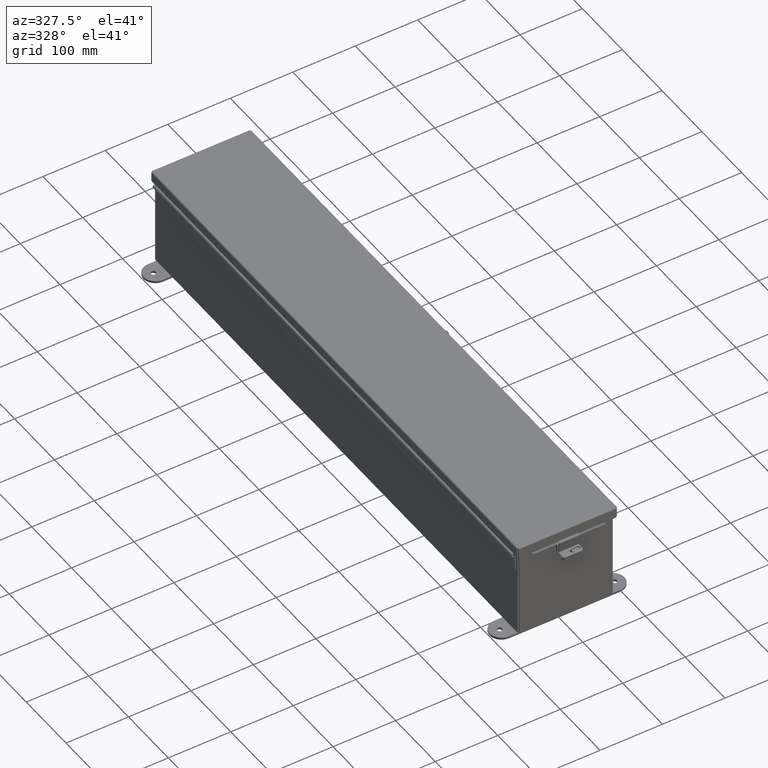
[diagram: clean part render]
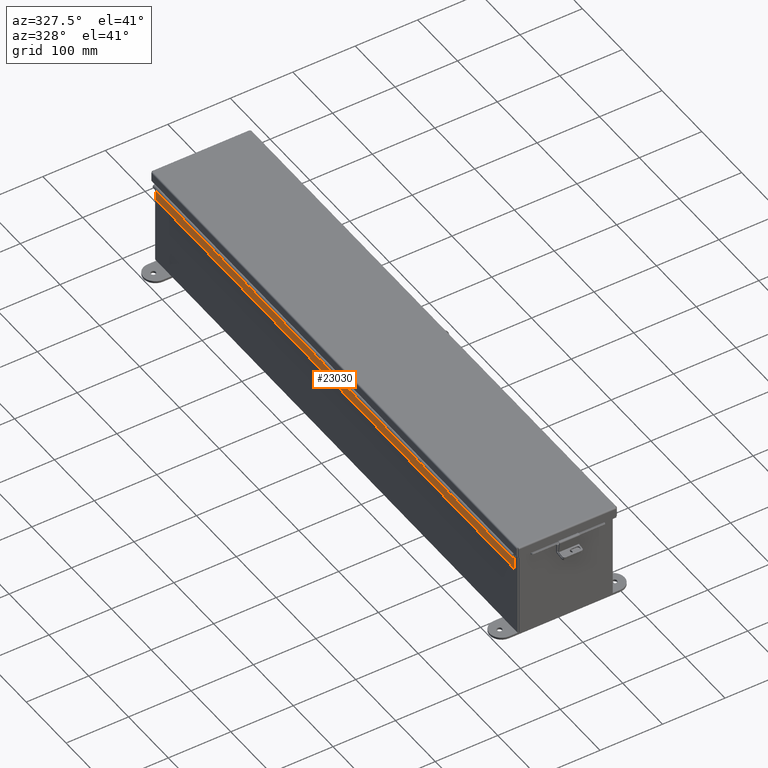
[diagram: same view with one face highlighted and labeled with its STEP entity id]
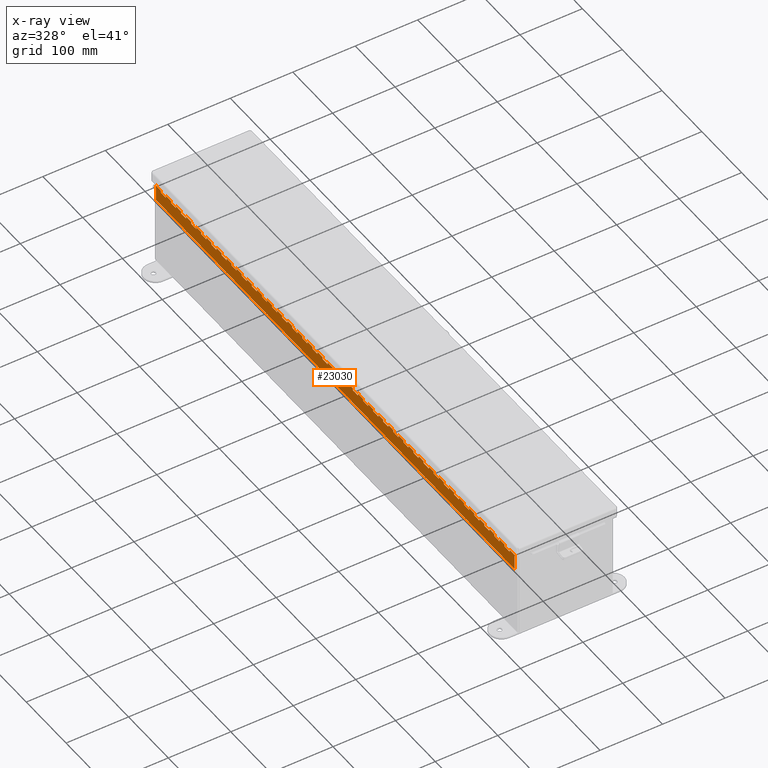
[diagram: x-ray of the same camera — body ghosted, the highlighted face saturated]
A machine part, auxiliary view. The second image highlights one B-rep face of the part: STEP entity #23030.
The next image is the same camera in x-ray: the body ghosted, the highlighted face saturated — about 0% of this face is hidden behind the body in this view.
In plain terms, the highlighted planar face has unit normal (1, -0, 0).
Its self-contained STEP definition (entity closure, byte-faithful):
#38 = LINE ( 'NONE', #9861, #5352 ) ;
#41 = CARTESIAN_POINT ( 'NONE',  ( 0.0000000000000000000, 5.999999999999994700, 2.185478394931410600E-015 ) ) ;
#45 = VECTOR ( 'NONE', #29439, 39.37007874015748100 ) ;
#46 = ORIENTED_EDGE ( 'NONE', *, *, #6501, .F. ) ;
#62 = EDGE_CURVE ( 'NONE', #9107, #3645, #19506, .T. ) ;
#115 = CARTESIAN_POINT ( 'NONE',  ( 0.2730000000000000800, 0.0000000000000000000, 0.0000000000000000000 ) ) ;
#118 = ORIENTED_EDGE ( 'NONE', *, *, #21294, .T. ) ;
#204 = ORIENTED_EDGE ( 'NONE', *, *, #11788, .F. ) ;
#207 = CARTESIAN_POINT ( 'NONE',  ( 0.2730000000000000800, 30.49999999999998900, 5.463695987328526400E-016 ) ) ;
#257 = ORIENTED_EDGE ( 'NONE', *, *, #11205, .T. ) ;
#280 = CARTESIAN_POINT ( 'NONE',  ( 0.1365000000000000400, 0.0000000000000000000, 1.639108796198557900E-015 ) ) ;
#312 = VECTOR ( 'NONE', #15197, 39.37007874015748100 ) ;
#404 = EDGE_CURVE ( 'NONE', #16912, #28005, #22309, .T. ) ;
#417 = CARTESIAN_POINT ( 'NONE',  ( 1.748382715945128500E-014, 24.49999999999999600, 5.463695987328526400E-016 ) ) ;
#418 = CARTESIAN_POINT ( 'NONE',  ( 0.2730000000000000800, 30.99999999999999300, 0.0000000000000000000 ) ) ;
#454 = VERTEX_POINT ( 'NONE', #2150 ) ;
#505 = VERTEX_POINT ( 'NONE', #22500 ) ;
#519 = DIRECTION ( 'NONE',  ( -1.000000000000000000, 1.165541987464044900E-028, 3.786532345060856700E-029 ) ) ;
#521 = ORIENTED_EDGE ( 'NONE', *, *, #2243, .F. ) ;
#537 = CARTESIAN_POINT ( 'NONE',  ( 0.2729999999999989700, 1.499999999999992200, 2.185478394931410600E-015 ) ) ;
#538 = ORIENTED_EDGE ( 'NONE', *, *, #8173, .F. ) ;
#596 = CARTESIAN_POINT ( 'NONE',  ( 0.1365000000000000400, 20.49999999999998900, 5.463695987328526400E-016 ) ) ;
#615 = EDGE_CURVE ( 'NONE', #28472, #11382, #5157, .T. ) ;
#641 = VECTOR ( 'NONE', #7894, 39.37007874015748100 ) ;
#670 = DIRECTION ( 'NONE',  ( -1.000000000000000000, 1.165541987464044900E-028, 3.786532345060856700E-029 ) ) ;
#695 = EDGE_CURVE ( 'NONE', #29302, #28449, #11258, .T. ) ;
#701 = CARTESIAN_POINT ( 'NONE',  ( 0.1365000000000000400, 30.99999999999999300, -5.463695987328526400E-016 ) ) ;
#756 = DIRECTION ( 'NONE',  ( -1.000000000000000000, 1.165541987464044900E-028, 3.786532345060856700E-029 ) ) ;
#771 = VECTOR ( 'NONE', #6849, 39.37007874015748100 ) ;
#792 = CARTESIAN_POINT ( 'NONE',  ( 0.0000000000000000000, 10.00000000000002500, 1.639108796198557900E-015 ) ) ;
#806 = VERTEX_POINT ( 'NONE', #19964 ) ;
#807 = LINE ( 'NONE', #27555, #24293 ) ;
#814 = DIRECTION ( 'NONE',  ( -1.000000000000000000, 1.165541987464044900E-028, 3.786532345060856700E-029 ) ) ;
#826 = VERTEX_POINT ( 'NONE', #3298 ) ;
#848 = EDGE_CURVE ( 'NONE', #19496, #21129, #16974, .T. ) ;
#864 = LINE ( 'NONE', #20733, #17661 ) ;
#883 = ORIENTED_EDGE ( 'NONE', *, *, #19092, .T. ) ;
#889 = CARTESIAN_POINT ( 'NONE',  ( 0.0000000000000000000, 8.000000000000026600, 1.639108796198557900E-015 ) ) ;
#904 = DIRECTION ( 'NONE',  ( -1.165541987464044900E-028, 1.000000000000000000, -6.810147738116326200E-017 ) ) ;
#913 = LINE ( 'NONE', #792, #24396 ) ;
#968 = CARTESIAN_POINT ( 'NONE',  ( 0.2730000000000000800, -14.00000000000000400, 1.092739197465705300E-015 ) ) ;
#1052 = VERTEX_POINT ( 'NONE', #18218 ) ;
#1107 = CARTESIAN_POINT ( 'NONE',  ( 0.2729999999999989700, 10.50000000000002800, 1.639108796198557900E-015 ) ) ;
#1173 = CARTESIAN_POINT ( 'NONE',  ( 0.1365000000000000400, 1.499999999999992200, 1.639108796198557900E-015 ) ) ;
#1208 = VERTEX_POINT ( 'NONE', #17195 ) ;
#1218 = CARTESIAN_POINT ( 'NONE',  ( 0.0000000000000000000, 22.49999999999999300, 1.092739197465705300E-015 ) ) ;
#1220 = ORIENTED_EDGE ( 'NONE', *, *, #26411, .F. ) ;
#1238 = CARTESIAN_POINT ( 'NONE',  ( 0.2730000000000000800, 10.00000000000002500, 1.639108796198557900E-015 ) ) ;
#1274 = VERTEX_POINT ( 'NONE', #22268 ) ;
#1292 = DIRECTION ( 'NONE',  ( -1.165541987464044900E-028, 1.000000000000000000, -6.810147738116326200E-017 ) ) ;
#1302 = LINE ( 'NONE', #889, #18809 ) ;
#1304 = ORIENTED_EDGE ( 'NONE', *, *, #9136, .F. ) ;
#1335 = ORIENTED_EDGE ( 'NONE', *, *, #6993, .F. ) ;
#1351 = EDGE_CURVE ( 'NONE', #17448, #27978, #22255, .T. ) ;
#1393 = CARTESIAN_POINT ( 'NONE',  ( 0.0000000000000000000, 31.99999999999998900, 0.0000000000000000000 ) ) ;
#1417 = EDGE_CURVE ( 'NONE', #8230, #6679, #26121, .T. ) ;
#1443 = LINE ( 'NONE', #20400, #45 ) ;
#1470 = VERTEX_POINT ( 'NONE', #14510 ) ;
#1489 = CARTESIAN_POINT ( 'NONE',  ( 0.2730000000000000800, -4.999999999999998200, 0.0000000000000000000 ) ) ;
#1524 = DIRECTION ( 'NONE',  ( -1.000000000000000000, 1.165541987464044900E-028, 3.786532345060856700E-029 ) ) ;
#1528 = VERTEX_POINT ( 'NONE', #19042 ) ;
#1556 = VECTOR ( 'NONE', #17911, 39.37007874015748100 ) ;
#1568 = ORIENTED_EDGE ( 'NONE', *, *, #19307, .F. ) ;
#1596 = CARTESIAN_POINT ( 'NONE',  ( 0.1365000000000000400, 11.00000000000003000, 5.463695987328526400E-016 ) ) ;
#1616 = LINE ( 'NONE', #25960, #12353 ) ;
#1619 = LINE ( 'NONE', #13273, #25120 ) ;
#1649 = EDGE_CURVE ( 'NONE', #27596, #11250, #26465, .T. ) ;
#1665 = CARTESIAN_POINT ( 'NONE',  ( 0.1365000000000000400, 0.0000000000000000000, 1.639108796198557900E-015 ) ) ;
#1667 = VECTOR ( 'NONE', #27186, 39.37007874015748100 ) ;
#1696 = LINE ( 'NONE', #21050, #20625 ) ;
#1729 = LINE ( 'NONE', #19383, #3153 ) ;
#1770 = EDGE_CURVE ( 'NONE', #11426, #27664, #22918, .T. ) ;
#1771 = CARTESIAN_POINT ( 'NONE',  ( 0.2729999999999989700, 1.999999999999994000, 2.185478394931410600E-015 ) ) ;
#1817 = ORIENTED_EDGE ( 'NONE', *, *, #7563, .F. ) ;
#1833 = LINE ( 'NONE', #12942, #13289 ) ;
#1853 = DIRECTION ( 'NONE',  ( -1.346685630691238100E-017, 1.000000000000000000, -1.559085427551940500E-030 ) ) ;
#1856 = LINE ( 'NONE', #21927, #13318 ) ;
#1896 = EDGE_CURVE ( 'NONE', #27192, #9685, #20104, .T. ) ;
#1912 = VECTOR ( 'NONE', #8356, 39.37007874015748100 ) ;
#1919 = CARTESIAN_POINT ( 'NONE',  ( 0.0000000000000000000, 13.50000000000002700, 1.092739197465705300E-015 ) ) ;
#1940 = ORIENTED_EDGE ( 'NONE', *, *, #15625, .F. ) ;
#1982 = ORIENTED_EDGE ( 'NONE', *, *, #9476, .F. ) ;
#2030 = CARTESIAN_POINT ( 'NONE',  ( 0.1365000000000000400, 19.99999999999999300, 5.463695987328526400E-016 ) ) ;
#2132 = LINE ( 'NONE', #10894, #8244 ) ;
#2141 = VECTOR ( 'NONE', #24025, 39.37007874015748100 ) ;
#2147 = CARTESIAN_POINT ( 'NONE',  ( 1.136500000000000300, 0.0000000000000000000, 8.741913579725642300E-015 ) ) ;
#2150 = CARTESIAN_POINT ( 'NONE',  ( 0.1365000000000000400, 33.49999999999999300, -5.463695987328526400E-016 ) ) ;
#2185 = DIRECTION ( 'NONE',  ( -1.165541987464044900E-028, 1.000000000000000000, -6.810147738116326200E-017 ) ) ;
#2186 = VECTOR ( 'NONE', #519, 39.37007874015748100 ) ;
#2193 = LINE ( 'NONE', #4786, #25707 ) ;
#2214 = LINE ( 'NONE', #3910, #7593 ) ;
#2232 = VERTEX_POINT ( 'NONE', #24465 ) ;
#2241 = VECTOR ( 'NONE', #11036, 39.37007874015748100 ) ;
#2243 = EDGE_CURVE ( 'NONE', #4864, #19693, #16890, .T. ) ;
#2245 = VECTOR ( 'NONE', #28496, 39.37007874015748100 ) ;
#2297 = VECTOR ( 'NONE', #14219, 39.37007874015748100 ) ;
#2320 = LINE ( 'NONE', #22198, #25847 ) ;
#2369 = EDGE_CURVE ( 'NONE', #1274, #5856, #1856, .T. ) ;
#2418 = CARTESIAN_POINT ( 'NONE',  ( 0.1365000000000000400, 32.49999999999999300, -5.463695987328526400E-016 ) ) ;
#2447 = CARTESIAN_POINT ( 'NONE',  ( 0.1365000000000000400, 0.0000000000000000000, 1.639108796198557900E-015 ) ) ;
#2448 = LINE ( 'NONE', #5277, #25962 ) ;
#2496 = CARTESIAN_POINT ( 'NONE',  ( 0.2730000000000000800, -14.99999999999999800, 1.092739197465705300E-015 ) ) ;
#2503 = CARTESIAN_POINT ( 'NONE',  ( 0.0000000000000000000, 34.49999999999999300, 0.0000000000000000000 ) ) ;
#2512 = LINE ( 'NONE', #9624, #25307 ) ;
#2593 = EDGE_CURVE ( 'NONE', #27596, #19693, #16524, .T. ) ;
#2626 = ORIENTED_EDGE ( 'NONE', *, *, #16661, .F. ) ;
#2705 = EDGE_CURVE ( 'NONE', #505, #26131, #5396, .T. ) ;
#2778 = DIRECTION ( 'NONE',  ( -1.346685630691238100E-017, 1.000000000000000000, -1.559085427551940500E-030 ) ) ;
#2782 = ORIENTED_EDGE ( 'NONE', *, *, #4153, .F. ) ;
#2814 = EDGE_CURVE ( 'NONE', #4012, #26139, #26744, .T. ) ;
#2924 = CARTESIAN_POINT ( 'NONE',  ( 0.1365000000000175200, 3.999999999999992500, 1.639108796198557900E-015 ) ) ;
#2948 = CARTESIAN_POINT ( 'NONE',  ( 0.0000000000000000000, 19.99999999999999300, 1.092739197465705300E-015 ) ) ;
#2949 = ORIENTED_EDGE ( 'NONE', *, *, #10343, .T. ) ;
#2995 = VERTEX_POINT ( 'NONE', #22797 ) ;
#3004 = CARTESIAN_POINT ( 'NONE',  ( 0.1365000000000164100, 4.999999999999991100, 1.092739197465705300E-015 ) ) ;
#3012 = VECTOR ( 'NONE', #27905, 39.37007874015748100 ) ;
#3027 = EDGE_CURVE ( 'NONE', #26198, #23418, #17202, .T. ) ;
#3032 = CARTESIAN_POINT ( 'NONE',  ( 0.0000000000000000000, 31.49999999999999300, 0.0000000000000000000 ) ) ;
#3037 = VECTOR ( 'NONE', #5861, 39.37007874015748100 ) ;
#3045 = ORIENTED_EDGE ( 'NONE', *, *, #10311, .F. ) ;
#3052 = LINE ( 'NONE', #29273, #11650 ) ;
#3080 = CARTESIAN_POINT ( 'NONE',  ( 0.2730000000000000800, 19.99999999999999300, 1.092739197465705300E-015 ) ) ;
#3110 = ORIENTED_EDGE ( 'NONE', *, *, #24190, .F. ) ;
#3153 = VECTOR ( 'NONE', #3408, 39.37007874015748100 ) ;
#3190 = LINE ( 'NONE', #15594, #28089 ) ;
#3192 = CARTESIAN_POINT ( 'NONE',  ( 1.748382715945128500E-014, 25.49999999999998900, 5.463695987328526400E-016 ) ) ;
#3211 = LINE ( 'NONE', #5725, #14663 ) ;
#3283 = CARTESIAN_POINT ( 'NONE',  ( 0.1365000000000000400, 0.0000000000000000000, 1.639108796198557900E-015 ) ) ;
#3298 = CARTESIAN_POINT ( 'NONE',  ( 0.2729999999999989700, 0.9999999999999947800, 2.185478394931410600E-015 ) ) ;
#3307 = ORIENTED_EDGE ( 'NONE', *, *, #13480, .T. ) ;
#3316 = EDGE_CURVE ( 'NONE', #28472, #1052, #21429, .T. ) ;
#3321 = VECTOR ( 'NONE', #18895, 39.37007874015748100 ) ;
#3323 = CARTESIAN_POINT ( 'NONE',  ( 0.1365000000000000400, 32.99999999999999300, -1.092739197465705300E-015 ) ) ;
#3358 = CARTESIAN_POINT ( 'NONE',  ( 0.1365000000000000400, 0.0000000000000000000, 1.639108796198557900E-015 ) ) ;
#3362 = DIRECTION ( 'NONE',  ( -1.000000000000000000, 1.165541987464044900E-028, 3.786532345060856700E-029 ) ) ;
#3371 = LINE ( 'NONE', #12784, #20851 ) ;
#3402 = VECTOR ( 'NONE', #8815, 39.37007874015748100 ) ;
#3408 = DIRECTION ( 'NONE',  ( -1.000000000000000000, 1.165541987464044900E-028, 3.786532345060856700E-029 ) ) ;
#3445 = CARTESIAN_POINT ( 'NONE',  ( 0.2730000000000164500, -6.000000000000001800, 5.463695987328526400E-016 ) ) ;
#3505 = VERTEX_POINT ( 'NONE', #418 ) ;
#3530 = EDGE_CURVE ( 'NONE', #11250, #25409, #27764, .T. ) ;
#3645 = VERTEX_POINT ( 'NONE', #7760 ) ;
#3690 = VECTOR ( 'NONE', #8559, 39.37007874015748100 ) ;
#3770 = LINE ( 'NONE', #1665, #20549 ) ;
#3817 = EDGE_CURVE ( 'NONE', #26782, #14090, #14655, .T. ) ;
#3824 = CARTESIAN_POINT ( 'NONE',  ( 0.0000000000000000000, 18.00000000000002800, 1.092739197465705300E-015 ) ) ;
#3851 = CARTESIAN_POINT ( 'NONE',  ( 0.2730000000000000800, -29.00000000000000700, 1.639108796198557900E-015 ) ) ;
#3856 = VECTOR ( 'NONE', #28761, 39.37007874015748100 ) ;
#3910 = CARTESIAN_POINT ( 'NONE',  ( 0.2730000000000175600, -7.000000000000005300, 5.463695987328526400E-016 ) ) ;
#3943 = VECTOR ( 'NONE', #25196, 39.37007874015748100 ) ;
#3953 = VECTOR ( 'NONE', #15696, 39.37007874015748100 ) ;
#3964 = ORIENTED_EDGE ( 'NONE', *, *, #8759, .F. ) ;
#4012 = VERTEX_POINT ( 'NONE', #26549 ) ;
#4075 = LINE ( 'NONE', #20934, #4780 ) ;
#4088 = VECTOR ( 'NONE', #21816, 39.37007874015748100 ) ;
#4094 = LINE ( 'NONE', #17002, #10884 ) ;
#4136 = CARTESIAN_POINT ( 'NONE',  ( 0.1365000000000000400, 21.49999999999999300, 0.0000000000000000000 ) ) ;
#4153 = EDGE_CURVE ( 'NONE', #23606, #9822, #24178, .T. ) ;
#4225 = ORIENTED_EDGE ( 'NONE', *, *, #26021, .T. ) ;
#4248 = CARTESIAN_POINT ( 'NONE',  ( 0.1365000000000000400, 10.50000000000002800, 1.092739197465705300E-015 ) ) ;
#4273 = EDGE_CURVE ( 'NONE', #11219, #9107, #2448, .T. ) ;
#4312 = VECTOR ( 'NONE', #22125, 39.37007874015748100 ) ;
#4322 = ORIENTED_EDGE ( 'NONE', *, *, #11997, .T. ) ;
#4387 = LINE ( 'NONE', #13152, #21171 ) ;
#4408 = CARTESIAN_POINT ( 'NONE',  ( 0.2730000000000000800, 5.499999999999992900, 2.185478394931410600E-015 ) ) ;
#4478 = ORIENTED_EDGE ( 'NONE', *, *, #9926, .F. ) ;
#4547 = CARTESIAN_POINT ( 'NONE',  ( 0.1365000000000175200, 15.00000000000002700, 5.463695987328526400E-016 ) ) ;
#4573 = CARTESIAN_POINT ( 'NONE',  ( 0.2730000000000164500, 34.99999999999999300, 0.0000000000000000000 ) ) ;
#4642 = VECTOR ( 'NONE', #9464, 39.37007874015748100 ) ;
#4655 = LINE ( 'NONE', #4838, #16838 ) ;
#4677 = LINE ( 'NONE', #17149, #28158 ) ;
#4710 = VECTOR ( 'NONE', #1292, 39.37007874015748100 ) ;
#4712 = DIRECTION ( 'NONE',  ( -1.000000000000000000, 1.165541987464044900E-028, 3.786532345060856700E-029 ) ) ;
#4720 = ORIENTED_EDGE ( 'NONE', *, *, #22175, .F. ) ;
#4747 = DIRECTION ( 'NONE',  ( -1.165541987464044900E-028, 1.000000000000000000, -6.810147738116326200E-017 ) ) ;
#4759 = CARTESIAN_POINT ( 'NONE',  ( 0.0000000000000000000, 33.99999999999999300, 0.0000000000000000000 ) ) ;
#4761 = LINE ( 'NONE', #20901, #22942 ) ;
#4762 = DIRECTION ( 'NONE',  ( -1.000000000000000000, 1.165541987464044900E-028, 3.786532345060856700E-029 ) ) ;
#4767 = CARTESIAN_POINT ( 'NONE',  ( 0.0000000000000000000, 33.49999999999999300, 0.0000000000000000000 ) ) ;
#4780 = VECTOR ( 'NONE', #25461, 39.37007874015748100 ) ;
#4786 = CARTESIAN_POINT ( 'NONE',  ( 0.0000000000000000000, 30.49999999999998900, 5.463695987328526400E-016 ) ) ;
#4792 = VECTOR ( 'NONE', #3362, 39.37007874015748100 ) ;
#4838 = CARTESIAN_POINT ( 'NONE',  ( 0.0000000000000000000, 12.50000000000002700, 1.639108796198557900E-015 ) ) ;
#4856 = ORIENTED_EDGE ( 'NONE', *, *, #10192, .T. ) ;
#4864 = VERTEX_POINT ( 'NONE', #3004 ) ;
#4865 = LINE ( 'NONE', #22980, #16342 ) ;
#4872 = VERTEX_POINT ( 'NONE', #29143 ) ;
#4899 = CARTESIAN_POINT ( 'NONE',  ( 0.2730000000000000800, 8.000000000000026600, 2.185478394931410600E-015 ) ) ;
#4915 = VECTOR ( 'NONE', #814, 39.37007874015748100 ) ;
#4929 = VERTEX_POINT ( 'NONE', #19087 ) ;
#4930 = LINE ( 'NONE', #12046, #28402 ) ;
#5011 = ORIENTED_EDGE ( 'NONE', *, *, #15017, .F. ) ;
#5042 = VECTOR ( 'NONE', #23487, 39.37007874015748100 ) ;
#5072 = LINE ( 'NONE', #6487, #29246 ) ;
#5079 = VECTOR ( 'NONE', #12809, 39.37007874015748100 ) ;
#5085 = ORIENTED_EDGE ( 'NONE', *, *, #5546, .T. ) ;
#5108 = ORIENTED_EDGE ( 'NONE', *, *, #21846, .F. ) ;
#5111 = VERTEX_POINT ( 'NONE', #11003 ) ;
#5114 = CARTESIAN_POINT ( 'NONE',  ( 0.2730000000000164500, 3.499999999999990700, 2.185478394931410600E-015 ) ) ;
#5157 = LINE ( 'NONE', #9681, #28642 ) ;
#5172 = LINE ( 'NONE', #13504, #15207 ) ;
#5176 = DIRECTION ( 'NONE',  ( -1.000000000000000000, 1.165541987464044900E-028, 3.786532345060856700E-029 ) ) ;
#5225 = ORIENTED_EDGE ( 'NONE', *, *, #13099, .T. ) ;
#5242 = CARTESIAN_POINT ( 'NONE',  ( 0.2730000000000000800, -28.00000000000001100, 2.185478394931410600E-015 ) ) ;
#5266 = CARTESIAN_POINT ( 'NONE',  ( 0.1365000000000000400, 0.0000000000000000000, 1.639108796198557900E-015 ) ) ;
#5277 = CARTESIAN_POINT ( 'NONE',  ( 0.0000000000000000000, 11.00000000000003000, -7.102804783527084800E-015 ) ) ;
#5288 = LINE ( 'NONE', #6817, #28760 ) ;
#5331 = CARTESIAN_POINT ( 'NONE',  ( 0.1365000000000000400, 20.99999999999999600, 0.0000000000000000000 ) ) ;
#5352 = VECTOR ( 'NONE', #23467, 39.37007874015748100 ) ;
#5362 = VECTOR ( 'NONE', #18229, 39.37007874015748100 ) ;
#5386 = CARTESIAN_POINT ( 'NONE',  ( 0.1365000000000000400, 5.499999999999992900, 1.092739197465705300E-015 ) ) ;
#5396 = LINE ( 'NONE', #12802, #28861 ) ;
#5412 = CARTESIAN_POINT ( 'NONE',  ( 1.748382715945128500E-014, 34.99999999999999300, -8.741913579725642300E-015 ) ) ;
#5432 = VERTEX_POINT ( 'NONE', #13518 ) ;
#5433 = ORIENTED_EDGE ( 'NONE', *, *, #27409, .F. ) ;
#5441 = VERTEX_POINT ( 'NONE', #24467 ) ;
#5489 = CARTESIAN_POINT ( 'NONE',  ( 0.1365000000000000400, 0.0000000000000000000, 1.639108796198557900E-015 ) ) ;
#5507 = VECTOR ( 'NONE', #7145, 39.37007874015748100 ) ;
#5526 = CARTESIAN_POINT ( 'NONE',  ( 0.1365000000000000400, 19.50000000000002500, 0.0000000000000000000 ) ) ;
#5546 = EDGE_CURVE ( 'NONE', #13642, #28320, #9013, .T. ) ;
#5585 = EDGE_CURVE ( 'NONE', #23615, #18646, #2193, .T. ) ;
#5590 = DIRECTION ( 'NONE',  ( -1.165541987464044900E-028, 1.000000000000000000, -6.810147738116326200E-017 ) ) ;
#5648 = DIRECTION ( 'NONE',  ( -1.165541987464044900E-028, 1.000000000000000000, -6.810147738116326200E-017 ) ) ;
#5725 = CARTESIAN_POINT ( 'NONE',  ( 0.1365000000000000400, 0.0000000000000000000, 1.639108796198557900E-015 ) ) ;
#5856 = VERTEX_POINT ( 'NONE', #9888 ) ;
#5861 = DIRECTION ( 'NONE',  ( -1.346685630691238100E-017, 1.000000000000000000, -1.559085427551940500E-030 ) ) ;
#5910 = LINE ( 'NONE', #21997, #21958 ) ;
#5939 = LINE ( 'NONE', #12706, #29377 ) ;
#5964 = ORIENTED_EDGE ( 'NONE', *, *, #27047, .F. ) ;
#5986 = ORIENTED_EDGE ( 'NONE', *, *, #27001, .F. ) ;
#6022 = DIRECTION ( 'NONE',  ( -1.000000000000000000, 1.165541987464044900E-028, 3.786532345060856700E-029 ) ) ;
#6033 = VECTOR ( 'NONE', #21720, 39.37007874015748100 ) ;
#6046 = CARTESIAN_POINT ( 'NONE',  ( 0.0000000000000000000, 23.49999999999999300, 5.463695987328526400E-016 ) ) ;
#6099 = VERTEX_POINT ( 'NONE', #10507 ) ;
#6125 = CARTESIAN_POINT ( 'NONE',  ( 0.2730000000000000800, 16.00000000000002800, 1.639108796198557900E-015 ) ) ;
#6175 = VECTOR ( 'NONE', #10110, 39.37007874015748100 ) ;
#6183 = EDGE_CURVE ( 'NONE', #1470, #22950, #4655, .T. ) ;
#6186 = DIRECTION ( 'NONE',  ( -1.000000000000000000, 1.165541987464044900E-028, 3.786532345060856700E-029 ) ) ;
#6201 = DIRECTION ( 'NONE',  ( -1.346685630691238100E-017, 1.000000000000000000, -1.559085427551940500E-030 ) ) ;
#6203 = LINE ( 'NONE', #280, #11593 ) ;
#6204 = EDGE_CURVE ( 'NONE', #16646, #23774, #28142, .T. ) ;
#6222 = LINE ( 'NONE', #11758, #5507 ) ;
#6229 = CARTESIAN_POINT ( 'NONE',  ( 0.0000000000000000000, 28.49999999999999300, 5.463695987328526400E-016 ) ) ;
#6231 = VECTOR ( 'NONE', #9809, 39.37007874015748100 ) ;
#6238 = AXIS2_PLACEMENT_3D ( 'NONE', #7208, #25390, #11822 ) ;
#6261 = LINE ( 'NONE', #5412, #29005 ) ;
#6286 = ORIENTED_EDGE ( 'NONE', *, *, #19576, .T. ) ;
#6293 = VERTEX_POINT ( 'NONE', #8020 ) ;
#6294 = EDGE_CURVE ( 'NONE', #5441, #7272, #2512, .T. ) ;
#6311 = VERTEX_POINT ( 'NONE', #7050 ) ;
#6334 = EDGE_CURVE ( 'NONE', #7150, #806, #18625, .T. ) ;
#6355 = CARTESIAN_POINT ( 'NONE',  ( 0.0000000000000000000, 20.99999999999999600, -7.649174382259936200E-015 ) ) ;
#6357 = VECTOR ( 'NONE', #26906, 39.37007874015748100 ) ;
#6371 = LINE ( 'NONE', #28734, #312 ) ;
#6402 = VERTEX_POINT ( 'NONE', #2147 ) ;
#6422 = VERTEX_POINT ( 'NONE', #537 ) ;
#6446 = VECTOR ( 'NONE', #756, 39.37007874015748100 ) ;
#6477 = CARTESIAN_POINT ( 'NONE',  ( 0.1365000000000175200, 24.99999999999999300, -5.463695987328526400E-016 ) ) ;
#6487 = CARTESIAN_POINT ( 'NONE',  ( 0.2730000000000000800, -21.00000000000001400, 1.092739197465705300E-015 ) ) ;
#6501 = EDGE_CURVE ( 'NONE', #11069, #19583, #26354, .T. ) ;
#6526 = VERTEX_POINT ( 'NONE', #27594 ) ;
#6546 = EDGE_CURVE ( 'NONE', #26937, #23015, #13612, .T. ) ;
#6605 = ORIENTED_EDGE ( 'NONE', *, *, #23097, .F. ) ;
#6621 = CARTESIAN_POINT ( 'NONE',  ( 0.0000000000000000000, 19.00000000000002800, -7.649174382259936200E-015 ) ) ;
#6650 = VERTEX_POINT ( 'NONE', #18908 ) ;
#6679 = VERTEX_POINT ( 'NONE', #25933 ) ;
#6696 = LINE ( 'NONE', #21929, #641 ) ;
#6716 = DIRECTION ( 'NONE',  ( -1.165541987464044900E-028, 1.000000000000000000, -6.810147738116326200E-017 ) ) ;
#6725 = EDGE_CURVE ( 'NONE', #12724, #27799, #3211, .T. ) ;
#6727 = LINE ( 'NONE', #13846, #23458 ) ;
#6817 = CARTESIAN_POINT ( 'NONE',  ( 0.1365000000000000400, 0.0000000000000000000, 1.639108796198557900E-015 ) ) ;
#6849 = DIRECTION ( 'NONE',  ( -1.165541987464044900E-028, 1.000000000000000000, -6.810147738116326200E-017 ) ) ;
#6922 = CARTESIAN_POINT ( 'NONE',  ( 0.2730000000000000800, -11.00000000000000200, 5.463695987328526400E-016 ) ) ;
#6993 = EDGE_CURVE ( 'NONE', #19752, #11219, #19629, .T. ) ;
#7045 = LINE ( 'NONE', #12998, #24463 ) ;
#7050 = CARTESIAN_POINT ( 'NONE',  ( 0.1365000000000000400, 6.999999999999993800, 1.092739197465705300E-015 ) ) ;
#7145 = DIRECTION ( 'NONE',  ( -1.346685630691238100E-017, 1.000000000000000000, -1.559085427551940500E-030 ) ) ;
#7146 = ORIENTED_EDGE ( 'NONE', *, *, #3817, .F. ) ;
#7150 = VERTEX_POINT ( 'NONE', #28471 ) ;
#7206 = ORIENTED_EDGE ( 'NONE', *, *, #404, .F. ) ;
#7208 = CARTESIAN_POINT ( 'NONE',  ( 1.136499999999999800, 35.50000000000000000, 0.0000000000000000000 ) ) ;
#7243 = CARTESIAN_POINT ( 'NONE',  ( 0.1365000000000000400, 27.99999999999999300, 0.0000000000000000000 ) ) ;
#7272 = VERTEX_POINT ( 'NONE', #2418 ) ;
#7308 = CARTESIAN_POINT ( 'NONE',  ( 0.1365000000000000400, 26.99999999999998900, -5.463695987328526400E-016 ) ) ;
#7408 = ORIENTED_EDGE ( 'NONE', *, *, #19017, .F. ) ;
#7484 = CARTESIAN_POINT ( 'NONE',  ( 0.2730000000000000800, 19.00000000000002800, 1.092739197465705300E-015 ) ) ;
#7534 = EDGE_CURVE ( 'NONE', #27296, #9053, #6727, .T. ) ;
#7551 = ORIENTED_EDGE ( 'NONE', *, *, #11680, .F. ) ;
#7554 = CARTESIAN_POINT ( 'NONE',  ( 0.2729999999999989700, 33.99999999999999300, 0.0000000000000000000 ) ) ;
#7563 = EDGE_CURVE ( 'NONE', #23426, #1052, #5288, .T. ) ;
#7593 = VECTOR ( 'NONE', #6201, 39.37007874015748100 ) ;
#7638 = ORIENTED_EDGE ( 'NONE', *, *, #15656, .F. ) ;
#7669 = VERTEX_POINT ( 'NONE', #16278 ) ;
#7675 = DIRECTION ( 'NONE',  ( -1.000000000000000000, 1.165541987464044900E-028, 3.786532345060856700E-029 ) ) ;
#7679 = ORIENTED_EDGE ( 'NONE', *, *, #615, .F. ) ;
#7681 = EDGE_CURVE ( 'NONE', #7791, #27192, #20649, .T. ) ;
#7704 = CARTESIAN_POINT ( 'NONE',  ( 0.2729999999999989700, 22.99999999999999300, 5.463695987328526400E-016 ) ) ;
#7718 = VERTEX_POINT ( 'NONE', #23035 ) ;
#7727 = CARTESIAN_POINT ( 'NONE',  ( 0.0000000000000000000, 10.50000000000002800, 1.639108796198557900E-015 ) ) ;
#7752 = VERTEX_POINT ( 'NONE', #28684 ) ;
#7760 = CARTESIAN_POINT ( 'NONE',  ( 0.1365000000000000400, 11.50000000000002800, 5.463695987328526400E-016 ) ) ;
#7775 = LINE ( 'NONE', #20663, #19208 ) ;
#7791 = VERTEX_POINT ( 'NONE', #26513 ) ;
#7807 = EDGE_CURVE ( 'NONE', #21155, #6402, #17112, .T. ) ;
#7816 = EDGE_CURVE ( 'NONE', #18112, #12904, #22412, .T. ) ;
#7855 = ORIENTED_EDGE ( 'NONE', *, *, #10798, .F. ) ;
#7894 = DIRECTION ( 'NONE',  ( -1.000000000000000000, 1.165541987464044900E-028, 3.786532345060856700E-029 ) ) ;
#7970 = EDGE_CURVE ( 'NONE', #23172, #12894, #6696, .T. ) ;
#7979 = CARTESIAN_POINT ( 'NONE',  ( 1.748382715945128500E-014, 14.50000000000002500, 1.639108796198557900E-015 ) ) ;
#7984 = EDGE_CURVE ( 'NONE', #14092, #21895, #24853, .T. ) ;
#8020 = CARTESIAN_POINT ( 'NONE',  ( 0.1365000000000000400, 10.00000000000002500, 1.092739197465705300E-015 ) ) ;
#8041 = EDGE_CURVE ( 'NONE', #17497, #4864, #23427, .T. ) ;
#8055 = DIRECTION ( 'NONE',  ( -1.165541987464044900E-028, 1.000000000000000000, -6.810147738116326200E-017 ) ) ;
#8166 = EDGE_CURVE ( 'NONE', #6311, #5856, #7775, .T. ) ;
#8172 = CARTESIAN_POINT ( 'NONE',  ( 0.0000000000000000000, 8.500000000000023100, 1.639108796198557900E-015 ) ) ;
#8173 = EDGE_CURVE ( 'NONE', #18112, #11174, #1696, .T. ) ;
#8184 = CARTESIAN_POINT ( 'NONE',  ( 0.0000000000000000000, 23.99999999999999600, 5.463695987328526400E-016 ) ) ;
#8187 = VERTEX_POINT ( 'NONE', #20243 ) ;
#8195 = VERTEX_POINT ( 'NONE', #16317 ) ;
#8209 = ORIENTED_EDGE ( 'NONE', *, *, #22707, .T. ) ;
#8227 = ORIENTED_EDGE ( 'NONE', *, *, #15497, .T. ) ;
#8230 = VERTEX_POINT ( 'NONE', #18007 ) ;
#8239 = CARTESIAN_POINT ( 'NONE',  ( 0.1365000000000175200, 24.49999999999999600, 0.0000000000000000000 ) ) ;
#8244 = VECTOR ( 'NONE', #29037, 39.37007874015748100 ) ;
#8261 = ORIENTED_EDGE ( 'NONE', *, *, #17549, .F. ) ;
#8347 = DIRECTION ( 'NONE',  ( -1.346685630691238100E-017, 1.000000000000000000, -1.559085427551940500E-030 ) ) ;
#8356 = DIRECTION ( 'NONE',  ( -3.847673230629600900E-018, 1.000000000000000000, -1.573776331782671400E-030 ) ) ;
#8507 = DIRECTION ( 'NONE',  ( -1.346685630691238100E-017, 1.000000000000000000, -1.559085427551940500E-030 ) ) ;
#8515 = DIRECTION ( 'NONE',  ( -1.000000000000000000, 1.165541987464044900E-028, 3.786532345060856700E-029 ) ) ;
#8548 = LINE ( 'NONE', #28988, #25954 ) ;
#8559 = DIRECTION ( 'NONE',  ( -1.165541987464044900E-028, 1.000000000000000000, -6.810147738116326200E-017 ) ) ;
#8565 = CARTESIAN_POINT ( 'NONE',  ( 0.2729999999999989700, 21.49999999999999300, 1.092739197465705300E-015 ) ) ;
#8581 = VECTOR ( 'NONE', #14591, 39.37007874015748100 ) ;
#8605 = CARTESIAN_POINT ( 'NONE',  ( 0.1365000000000000400, 28.99999999999999300, -5.463695987328526400E-016 ) ) ;
#8615 = EDGE_CURVE ( 'NONE', #4012, #22575, #13121, .T. ) ;
#8619 = VERTEX_POINT ( 'NONE', #13652 ) ;
#8648 = VERTEX_POINT ( 'NONE', #19335 ) ;
#8719 = ORIENTED_EDGE ( 'NONE', *, *, #3027, .F. ) ;
#8732 = LINE ( 'NONE', #12744, #1912 ) ;
#8743 = EDGE_CURVE ( 'NONE', #23939, #8230, #4865, .T. ) ;
#8759 = EDGE_CURVE ( 'NONE', #11174, #23426, #22355, .T. ) ;
#8802 = ORIENTED_EDGE ( 'NONE', *, *, #16990, .F. ) ;
#8803 = DIRECTION ( 'NONE',  ( -1.000000000000000000, 1.165541987464044900E-028, 3.786532345060856700E-029 ) ) ;
#8815 = DIRECTION ( 'NONE',  ( -1.165541987464044900E-028, 1.000000000000000000, -6.810147738116326200E-017 ) ) ;
#8848 = EDGE_CURVE ( 'NONE', #21260, #28067, #1302, .T. ) ;
#8916 = EDGE_CURVE ( 'NONE', #18973, #22950, #11297, .T. ) ;
#9013 = LINE ( 'NONE', #16000, #27135 ) ;
#9053 = VERTEX_POINT ( 'NONE', #19674 ) ;
#9073 = VERTEX_POINT ( 'NONE', #8605 ) ;
#9107 = VERTEX_POINT ( 'NONE', #1596 ) ;
#9123 = CARTESIAN_POINT ( 'NONE',  ( 0.2730000000000000800, -23.00000000000000400, 1.639108796198557900E-015 ) ) ;
#9136 = EDGE_CURVE ( 'NONE', #6293, #9417, #12373, .T. ) ;
#9141 = CARTESIAN_POINT ( 'NONE',  ( 0.1365000000000000400, 0.0000000000000000000, 1.639108796198557900E-015 ) ) ;
#9203 = ORIENTED_EDGE ( 'NONE', *, *, #8166, .F. ) ;
#9208 = LINE ( 'NONE', #12804, #14567 ) ;
#9215 = VERTEX_POINT ( 'NONE', #22132 ) ;
#9344 = VECTOR ( 'NONE', #12607, 39.37007874015748100 ) ;
#9376 = DIRECTION ( 'NONE',  ( -1.346685630691238100E-017, 1.000000000000000000, -1.559085427551940500E-030 ) ) ;
#9381 = VECTOR ( 'NONE', #11486, 39.37007874015748100 ) ;
#9388 = DIRECTION ( 'NONE',  ( -1.000000000000000000, 1.165541987464044900E-028, 3.786532345060856700E-029 ) ) ;
#9389 = EDGE_CURVE ( 'NONE', #11382, #10674, #17357, .T. ) ;
#9417 = VERTEX_POINT ( 'NONE', #4248 ) ;
#9418 = DIRECTION ( 'NONE',  ( -1.000000000000000000, 1.165541987464044900E-028, 3.786532345060856700E-029 ) ) ;
#9426 = VECTOR ( 'NONE', #16116, 39.37007874015748100 ) ;
#9457 = EDGE_CURVE ( 'NONE', #8187, #20964, #5172, .T. ) ;
#9464 = DIRECTION ( 'NONE',  ( -1.346685630691238100E-017, 1.000000000000000000, -1.559085427551940500E-030 ) ) ;
#9467 = VECTOR ( 'NONE', #22303, 39.37007874015748100 ) ;
#9476 = EDGE_CURVE ( 'NONE', #25333, #25998, #26527, .T. ) ;
#9478 = VERTEX_POINT ( 'NONE', #1173 ) ;
#9485 = CARTESIAN_POINT ( 'NONE',  ( 0.0000000000000000000, 26.49999999999999300, 5.463695987328526400E-016 ) ) ;
#9532 = VECTOR ( 'NONE', #670, 39.37007874015748100 ) ;
#9548 = CARTESIAN_POINT ( 'NONE',  ( 0.2730000000000000800, 6.999999999999993800, 1.639108796198557900E-015 ) ) ;
#9624 = CARTESIAN_POINT ( 'NONE',  ( 0.0000000000000000000, 32.49999999999999300, 0.0000000000000000000 ) ) ;
#9641 = ORIENTED_EDGE ( 'NONE', *, *, #24844, .F. ) ;
#9681 = CARTESIAN_POINT ( 'NONE',  ( 0.2730000000000000800, -9.000000000000003600, 5.463695987328526400E-016 ) ) ;
#9685 = VERTEX_POINT ( 'NONE', #21023 ) ;
#9711 = ORIENTED_EDGE ( 'NONE', *, *, #848, .F. ) ;
#9724 = ORIENTED_EDGE ( 'NONE', *, *, #17012, .F. ) ;
#9735 = CARTESIAN_POINT ( 'NONE',  ( 0.0000000000000000000, 26.99999999999998900, -8.195543980992789300E-015 ) ) ;
#9777 = CARTESIAN_POINT ( 'NONE',  ( 1.748382715945128500E-014, 25.99999999999999600, 5.463695987328526400E-016 ) ) ;
#9796 = CARTESIAN_POINT ( 'NONE',  ( 0.0000000000000000000, 19.50000000000002500, 1.092739197465705300E-015 ) ) ;
#9800 = VECTOR ( 'NONE', #13399, 39.37007874015748100 ) ;
#9807 = LINE ( 'NONE', #14151, #21206 ) ;
#9809 = DIRECTION ( 'NONE',  ( -1.000000000000000000, 1.165541987464044900E-028, 3.786532345060856700E-029 ) ) ;
#9817 = CARTESIAN_POINT ( 'NONE',  ( 0.1365000000000175200, 4.499999999999989300, 1.639108796198557900E-015 ) ) ;
#9822 = VERTEX_POINT ( 'NONE', #21319 ) ;
#9861 = CARTESIAN_POINT ( 'NONE',  ( 0.2730000000000000800, -33.00000000000000000, 2.185478394931410600E-015 ) ) ;
#9875 = CARTESIAN_POINT ( 'NONE',  ( 0.2730000000000164500, 25.49999999999998900, 5.463695987328526400E-016 ) ) ;
#9888 = CARTESIAN_POINT ( 'NONE',  ( 0.1365000000000000400, 7.499999999999992000, 1.092739197465705300E-015 ) ) ;
#9894 = DIRECTION ( 'NONE',  ( -1.000000000000000000, 1.165541987464044900E-028, 3.786532345060856700E-029 ) ) ;
#9924 = EDGE_LOOP ( 'NONE', ( #118, #5986, #19889, #8209, #21965, #20775, #25772, #28917, #21627, #25362, #12838, #12210, #3307, #18563, #19205, #26935, #29140, #10913, #9711, #29214, #14365, #16650, #7551, #20573, #19327, #28543, #1940, #19547, #16672, #15112, #6605, #10414, #28148, #24662, #204, #8261, #5085, #25651, #12243, #1982, #26583, #5964, #19571, #7679, #11477, #1817, #3964, #538, #23128, #2626, #26703, #7206, #20879, #21643, #13126, #28384, #20164, #17186, #27553, #16172, #883, #13156, #4720, #9641, #4225, #16927, #4478, #12755, #20216, #15162, #12888, #28397, #5225, #1220, #2782, #26444, #22088, #10649, #15893, #10921, #25873, #10717, #27549, #7855, #4322, #3110, #7638, #17871, #28741, #23125, #17800, #16814, #257, #8802, #46, #5108, #15004, #14260, #15375, #8719, #2949, #25976, #18199, #1335, #15785, #1304, #3045, #10467, #12284, #27390, #16559, #12245, #12336, #15398, #19243, #5011, #28631, #9203, #9724, #7146, #11134, #16706, #26211, #10960, #17810, #521, #21773, #11158, #6286, #28270, #16955, #27907, #8227, #14254, #19985, #25862, #17395, #27715, #1568, #28814, #4856, #7408, #17307, #5433 ) ) ;
#9926 = EDGE_CURVE ( 'NONE', #26139, #29302, #21925, .T. ) ;
#9932 = LINE ( 'NONE', #24116, #3856 ) ;
#9973 = EDGE_CURVE ( 'NONE', #10329, #23392, #21212, .T. ) ;
#10010 = CARTESIAN_POINT ( 'NONE',  ( 0.1365000000000175200, 35.50000000000000000, -1.092739197465705300E-015 ) ) ;
#10024 = EDGE_CURVE ( 'NONE', #8648, #13517, #26505, .T. ) ;
#10063 = DIRECTION ( 'NONE',  ( -1.000000000000000000, 1.165541987464044900E-028, 3.786532345060856700E-029 ) ) ;
#10110 = DIRECTION ( 'NONE',  ( -1.165541987464044900E-028, 1.000000000000000000, -6.810147738116326200E-017 ) ) ;
#10164 = LINE ( 'NONE', #8184, #4088 ) ;
#10191 = CARTESIAN_POINT ( 'NONE',  ( 0.2730000000000000800, -18.00000000000000000, 1.092739197465705300E-015 ) ) ;
#10192 = EDGE_CURVE ( 'NONE', #6422, #9478, #4075, .T. ) ;
#10201 = LINE ( 'NONE', #29225, #3402 ) ;
#10285 = VECTOR ( 'NONE', #9418, 39.37007874015748100 ) ;
#10311 = EDGE_CURVE ( 'NONE', #11044, #6293, #913, .T. ) ;
#10313 = VECTOR ( 'NONE', #23433, 39.37007874015748100 ) ;
#10329 = VERTEX_POINT ( 'NONE', #16873 ) ;
#10343 = EDGE_CURVE ( 'NONE', #26198, #3645, #1616, .T. ) ;
#10372 = CARTESIAN_POINT ( 'NONE',  ( 0.1365000000000000400, 0.0000000000000000000, 1.639108796198557900E-015 ) ) ;
#10391 = CARTESIAN_POINT ( 'NONE',  ( 1.748382715945128500E-014, 4.999999999999991100, -6.556435184794231700E-015 ) ) ;
#10414 = ORIENTED_EDGE ( 'NONE', *, *, #27310, .F. ) ;
#10457 = LINE ( 'NONE', #11191, #16548 ) ;
#10459 = EDGE_CURVE ( 'NONE', #16646, #4872, #26880, .T. ) ;
#10467 = ORIENTED_EDGE ( 'NONE', *, *, #16093, .F. ) ;
#10477 = EDGE_CURVE ( 'NONE', #7669, #25208, #25454, .T. ) ;
#10505 = CARTESIAN_POINT ( 'NONE',  ( 0.2729999999999989700, 23.99999999999999600, 1.092739197465705300E-015 ) ) ;
#10506 = CARTESIAN_POINT ( 'NONE',  ( 0.2730000000000000800, 27.99999999999999300, 5.463695987328526400E-016 ) ) ;
#10507 = CARTESIAN_POINT ( 'NONE',  ( 0.1365000000000000400, 6.499999999999992000, 1.639108796198557900E-015 ) ) ;
#10526 = CARTESIAN_POINT ( 'NONE',  ( 0.2729999999999989700, 13.00000000000002800, 1.092739197465705300E-015 ) ) ;
#10649 = ORIENTED_EDGE ( 'NONE', *, *, #21476, .F. ) ;
#10653 = DIRECTION ( 'NONE',  ( -1.165541987464044900E-028, 1.000000000000000000, -6.810147738116326200E-017 ) ) ;
#10674 = VERTEX_POINT ( 'NONE', #15858 ) ;
#10688 = VECTOR ( 'NONE', #21912, 39.37007874015748100 ) ;
#10717 = ORIENTED_EDGE ( 'NONE', *, *, #25559, .F. ) ;
#10764 = CARTESIAN_POINT ( 'NONE',  ( 0.2730000000000164500, 24.49999999999999600, 1.092739197465705300E-015 ) ) ;
#10798 = EDGE_CURVE ( 'NONE', #14855, #26937, #6222, .T. ) ;
#10822 = VECTOR ( 'NONE', #14948, 39.37007874015748100 ) ;
#10825 = FACE_OUTER_BOUND ( 'NONE', #9924, .T. ) ;
#10833 = DIRECTION ( 'NONE',  ( -1.000000000000000000, 1.165541987464044900E-028, 3.786532345060856700E-029 ) ) ;
#10838 = CARTESIAN_POINT ( 'NONE',  ( 0.1365000000000000400, 0.0000000000000000000, 1.639108796198557900E-015 ) ) ;
#10884 = VECTOR ( 'NONE', #5590, 39.37007874015748100 ) ;
#10887 = CARTESIAN_POINT ( 'NONE',  ( 0.1365000000000000400, 0.0000000000000000000, 1.639108796198557900E-015 ) ) ;
#10894 = CARTESIAN_POINT ( 'NONE',  ( 0.0000000000000000000, 2.499999999999991600, 2.185478394931410600E-015 ) ) ;
#10898 = VERTEX_POINT ( 'NONE', #12152 ) ;
#10906 = CARTESIAN_POINT ( 'NONE',  ( 1.748382715945128500E-014, 24.99999999999999300, -7.649174382259936200E-015 ) ) ;
#10913 = ORIENTED_EDGE ( 'NONE', *, *, #16681, .F. ) ;
#10921 = ORIENTED_EDGE ( 'NONE', *, *, #7984, .F. ) ;
#10960 = ORIENTED_EDGE ( 'NONE', *, *, #1649, .F. ) ;
#11003 = CARTESIAN_POINT ( 'NONE',  ( 0.1365000000000000400, 23.99999999999999600, 0.0000000000000000000 ) ) ;
#11032 = CARTESIAN_POINT ( 'NONE',  ( 0.1365000000000000400, 0.0000000000000000000, 1.639108796198557900E-015 ) ) ;
#11036 = DIRECTION ( 'NONE',  ( -1.000000000000000000, 1.165541987464045200E-028, 3.786532345060857800E-029 ) ) ;
#11044 = VERTEX_POINT ( 'NONE', #1238 ) ;
#11052 = LINE ( 'NONE', #4767, #28423 ) ;
#11064 = CARTESIAN_POINT ( 'NONE',  ( 0.2730000000000000800, 28.99999999999999300, 0.0000000000000000000 ) ) ;
#11069 = VERTEX_POINT ( 'NONE', #10526 ) ;
#11134 = ORIENTED_EDGE ( 'NONE', *, *, #27668, .T. ) ;
#11158 = ORIENTED_EDGE ( 'NONE', *, *, #13832, .F. ) ;
#11174 = VERTEX_POINT ( 'NONE', #26790 ) ;
#11177 = LINE ( 'NONE', #26372, #5079 ) ;
#11191 = CARTESIAN_POINT ( 'NONE',  ( 0.2730000000000000800, -31.00000000000001400, 2.185478394931410600E-015 ) ) ;
#11205 = EDGE_CURVE ( 'NONE', #16191, #22550, #19070, .T. ) ;
#11216 = CARTESIAN_POINT ( 'NONE',  ( 0.1365000000000000400, 31.99999999999998900, -5.463695987328526400E-016 ) ) ;
#11219 = VERTEX_POINT ( 'NONE', #29148 ) ;
#11250 = VERTEX_POINT ( 'NONE', #29238 ) ;
#11258 = LINE ( 'NONE', #5489, #21232 ) ;
#11282 = DIRECTION ( 'NONE',  ( -1.165541987464044900E-028, 1.000000000000000000, -6.810147738116326200E-017 ) ) ;
#11297 = LINE ( 'NONE', #15062, #28676 ) ;
#11317 = CARTESIAN_POINT ( 'NONE',  ( 0.1365000000000000400, 0.0000000000000000000, 0.0000000000000000000 ) ) ;
#11369 = EDGE_CURVE ( 'NONE', #6526, #18646, #28238, .T. ) ;
#11382 = VERTEX_POINT ( 'NONE', #25202 ) ;
#11426 = VERTEX_POINT ( 'NONE', #11720 ) ;
#11477 = ORIENTED_EDGE ( 'NONE', *, *, #3316, .T. ) ;
#11486 = DIRECTION ( 'NONE',  ( -1.346685630691238100E-017, 1.000000000000000000, -1.559085427551940500E-030 ) ) ;
#11536 = CARTESIAN_POINT ( 'NONE',  ( 0.1365000000000175200, 14.50000000000002500, 1.092739197465705300E-015 ) ) ;
#11577 = VECTOR ( 'NONE', #23023, 39.37007874015748100 ) ;
#11593 = VECTOR ( 'NONE', #16270, 39.37007874015748100 ) ;
#11632 = CARTESIAN_POINT ( 'NONE',  ( 0.1365000000000000400, 0.4999999999999930100, 1.639108796198557900E-015 ) ) ;
#11650 = VECTOR ( 'NONE', #18152, 39.37007874015748100 ) ;
#11680 = EDGE_CURVE ( 'NONE', #3505, #17857, #25749, .T. ) ;
#11720 = CARTESIAN_POINT ( 'NONE',  ( 0.1365000000000175200, 14.00000000000002800, 5.463695987328526400E-016 ) ) ;
#11758 = CARTESIAN_POINT ( 'NONE',  ( 0.2730000000000000800, -19.00000000000000400, 1.092739197465705300E-015 ) ) ;
#11788 = EDGE_CURVE ( 'NONE', #25687, #16757, #17901, .T. ) ;
#11822 = DIRECTION ( 'NONE',  ( -1.000000000000000000, 1.165541987464044900E-028, 3.786532345060856700E-029 ) ) ;
#11835 = VECTOR ( 'NONE', #8803, 39.37007874015748100 ) ;
#11844 = CARTESIAN_POINT ( 'NONE',  ( 0.2730000000000000800, 16.50000000000002500, 1.639108796198557900E-015 ) ) ;
#11850 = VECTOR ( 'NONE', #904, 39.37007874015748100 ) ;
#11852 = DIRECTION ( 'NONE',  ( -1.346685630691238100E-017, 1.000000000000000000, -1.559085427551940500E-030 ) ) ;
#11997 = EDGE_CURVE ( 'NONE', #14855, #7718, #18953, .T. ) ;
#12046 = CARTESIAN_POINT ( 'NONE',  ( 0.1365000000000000400, 0.0000000000000000000, 1.639108796198557900E-015 ) ) ;
#12088 = EDGE_CURVE ( 'NONE', #6422, #16463, #38, .T. ) ;
#12092 = VECTOR ( 'NONE', #5176, 39.37007874015748100 ) ;
#12110 = CARTESIAN_POINT ( 'NONE',  ( 0.2730000000000000800, 15.50000000000002700, 1.092739197465705300E-015 ) ) ;
#12131 = DIRECTION ( 'NONE',  ( -1.165541987464044900E-028, 1.000000000000000000, -6.810147738116326200E-017 ) ) ;
#12151 = DIRECTION ( 'NONE',  ( -1.000000000000000000, 1.165541987464044900E-028, 3.786532345060856700E-029 ) ) ;
#12152 = CARTESIAN_POINT ( 'NONE',  ( 0.2730000000000164500, 4.499999999999989300, 2.185478394931410600E-015 ) ) ;
#12172 = VECTOR ( 'NONE', #14651, 39.37007874015748100 ) ;
#12210 = ORIENTED_EDGE ( 'NONE', *, *, #7681, .F. ) ;
#12243 = ORIENTED_EDGE ( 'NONE', *, *, #19031, .F. ) ;
#12245 = ORIENTED_EDGE ( 'NONE', *, *, #6204, .F. ) ;
#12284 = ORIENTED_EDGE ( 'NONE', *, *, #15739, .T. ) ;
#12300 = VERTEX_POINT ( 'NONE', #17456 ) ;
#12305 = VECTOR ( 'NONE', #4747, 39.37007874015748100 ) ;
#12314 = EDGE_CURVE ( 'NONE', #16912, #27357, #17869, .T. ) ;
#12336 = ORIENTED_EDGE ( 'NONE', *, *, #10459, .T. ) ;
#12339 = CARTESIAN_POINT ( 'NONE',  ( 0.2730000000000000800, 29.99999999999999300, 5.463695987328526400E-016 ) ) ;
#12353 = VECTOR ( 'NONE', #10063, 39.37007874015748100 ) ;
#12373 = LINE ( 'NONE', #10887, #17021 ) ;
#12385 = VECTOR ( 'NONE', #25364, 39.37007874015748100 ) ;
#12499 = CARTESIAN_POINT ( 'NONE',  ( 0.1365000000000000400, 0.0000000000000000000, 1.639108796198557900E-015 ) ) ;
#12556 = CARTESIAN_POINT ( 'NONE',  ( 1.748382715945128500E-014, 3.999999999999992500, 2.185478394931410600E-015 ) ) ;
#12572 = LINE ( 'NONE', #16887, #11850 ) ;
#12575 = CARTESIAN_POINT ( 'NONE',  ( 0.2730000000000000800, 27.49999999999999600, 5.463695987328526400E-016 ) ) ;
#12607 = DIRECTION ( 'NONE',  ( -1.346685630691238100E-017, 1.000000000000000000, -1.559085427551940500E-030 ) ) ;
#12610 = CARTESIAN_POINT ( 'NONE',  ( 0.0000000000000000000, 21.99999999999998900, 1.092739197465705300E-015 ) ) ;
#12705 = VERTEX_POINT ( 'NONE', #5114 ) ;
#12706 = CARTESIAN_POINT ( 'NONE',  ( 0.2730000000000175600, -27.00000000000000000, 1.639108796198557900E-015 ) ) ;
#12724 = VERTEX_POINT ( 'NONE', #2924 ) ;
#12744 = CARTESIAN_POINT ( 'NONE',  ( 1.136500000000000300, 0.0000000000000000000, 8.741913579725642300E-015 ) ) ;
#12755 = ORIENTED_EDGE ( 'NONE', *, *, #2814, .F. ) ;
#12784 = CARTESIAN_POINT ( 'NONE',  ( 0.0000000000000000000, 9.000000000000030200, -6.556435184794231700E-015 ) ) ;
#12785 = EDGE_CURVE ( 'NONE', #19752, #9417, #28419, .T. ) ;
#12802 = CARTESIAN_POINT ( 'NONE',  ( 0.2730000000000164500, -16.00000000000000400, 1.092739197465705300E-015 ) ) ;
#12804 = CARTESIAN_POINT ( 'NONE',  ( 0.2730000000000000800, -2.000000000000004900, 0.0000000000000000000 ) ) ;
#12809 = DIRECTION ( 'NONE',  ( -1.346685630691238100E-017, 1.000000000000000000, -1.559085427551940500E-030 ) ) ;
#12832 = DIRECTION ( 'NONE',  ( -1.000000000000000000, 1.165541987464044900E-028, 3.786532345060856700E-029 ) ) ;
#12838 = ORIENTED_EDGE ( 'NONE', *, *, #1896, .F. ) ;
#12849 = LINE ( 'NONE', #7979, #24180 ) ;
#12887 = LINE ( 'NONE', #968, #12172 ) ;
#12888 = ORIENTED_EDGE ( 'NONE', *, *, #17108, .F. ) ;
#12894 = VERTEX_POINT ( 'NONE', #21761 ) ;
#12904 = VERTEX_POINT ( 'NONE', #8239 ) ;
#12907 = VECTOR ( 'NONE', #4712, 39.37007874015748100 ) ;
#12942 = CARTESIAN_POINT ( 'NONE',  ( 0.2730000000000000800, -34.00000000000000000, 2.731847993664263200E-015 ) ) ;
#12998 = CARTESIAN_POINT ( 'NONE',  ( 0.2730000000000000800, -20.00000000000000000, 1.639108796198557900E-015 ) ) ;
#13006 = DIRECTION ( 'NONE',  ( -1.165541987464044900E-028, 1.000000000000000000, -6.810147738116326200E-017 ) ) ;
#13027 = CARTESIAN_POINT ( 'NONE',  ( 0.0000000000000000000, 1.999999999999994000, 2.185478394931410600E-015 ) ) ;
#13099 = EDGE_CURVE ( 'NONE', #505, #29099, #1729, .T. ) ;
#13121 = LINE ( 'NONE', #9796, #1667 ) ;
#13126 = ORIENTED_EDGE ( 'NONE', *, *, #7970, .F. ) ;
#13139 = VECTOR ( 'NONE', #15190, 39.37007874015748100 ) ;
#13152 = CARTESIAN_POINT ( 'NONE',  ( 0.0000000000000000000, 6.999999999999993800, -6.556435184794231700E-015 ) ) ;
#13156 = ORIENTED_EDGE ( 'NONE', *, *, #27804, .F. ) ;
#13167 = EDGE_CURVE ( 'NONE', #12300, #25046, #6371, .T. ) ;
#13246 = DIRECTION ( 'NONE',  ( -1.000000000000000000, 1.165541987464044900E-028, 3.786532345060856700E-029 ) ) ;
#13273 = CARTESIAN_POINT ( 'NONE',  ( 1.748382715945128500E-014, 15.00000000000002700, -7.102804783527084800E-015 ) ) ;
#13289 = VECTOR ( 'NONE', #15238, 39.37007874015748100 ) ;
#13302 = EDGE_CURVE ( 'NONE', #24472, #19496, #3190, .T. ) ;
#13306 = DIRECTION ( 'NONE',  ( -1.346685630691238100E-017, 1.000000000000000000, -1.559085427551940500E-030 ) ) ;
#13318 = VECTOR ( 'NONE', #22117, 39.37007874015748100 ) ;
#13327 = VERTEX_POINT ( 'NONE', #29215 ) ;
#13383 = CARTESIAN_POINT ( 'NONE',  ( 0.1365000000000000400, 31.49999999999999300, -5.463695987328526400E-016 ) ) ;
#13399 = DIRECTION ( 'NONE',  ( -1.000000000000000000, 1.165541987464044900E-028, 3.786532345060856700E-029 ) ) ;
#13463 = VECTOR ( 'NONE', #11282, 39.37007874015748100 ) ;
#13480 = EDGE_CURVE ( 'NONE', #7791, #454, #11052, .T. ) ;
#13504 = CARTESIAN_POINT ( 'NONE',  ( 0.0000000000000000000, 32.99999999999999300, -8.195543980992789300E-015 ) ) ;
#13517 = VERTEX_POINT ( 'NONE', #23182 ) ;
#13518 = CARTESIAN_POINT ( 'NONE',  ( 0.2730000000000164500, 3.999999999999992500, 2.185478394931410600E-015 ) ) ;
#13582 = VECTOR ( 'NONE', #22533, 39.37007874015748100 ) ;
#13610 = CARTESIAN_POINT ( 'NONE',  ( 0.1365000000000000400, 0.0000000000000000000, 1.639108796198557900E-015 ) ) ;
#13612 = LINE ( 'NONE', #23828, #2141 ) ;
#13642 = VERTEX_POINT ( 'NONE', #12575 ) ;
#13652 = CARTESIAN_POINT ( 'NONE',  ( 0.2730000000000000800, 20.49999999999998900, 1.092739197465705300E-015 ) ) ;
#13657 = VERTEX_POINT ( 'NONE', #26048 ) ;
#13725 = VECTOR ( 'NONE', #20302, 39.37007874015748100 ) ;
#13768 = VECTOR ( 'NONE', #28100, 39.37007874015748100 ) ;
#13832 = EDGE_CURVE ( 'NONE', #10898, #17497, #8548, .T. ) ;
#13835 = LINE ( 'NONE', #3358, #25159 ) ;
#13846 = CARTESIAN_POINT ( 'NONE',  ( 0.0000000000000000000, 17.50000000000002800, 1.092739197465705300E-015 ) ) ;
#13869 = CARTESIAN_POINT ( 'NONE',  ( 0.2730000000000000800, 8.500000000000023100, 2.185478394931410600E-015 ) ) ;
#13942 = CARTESIAN_POINT ( 'NONE',  ( 0.0000000000000000000, 0.0000000000000000000, 0.0000000000000000000 ) ) ;
#14060 = DIRECTION ( 'NONE',  ( -1.165541987464044900E-028, 1.000000000000000000, -6.810147738116326200E-017 ) ) ;
#14082 = VECTOR ( 'NONE', #4762, 39.37007874015748100 ) ;
#14090 = VERTEX_POINT ( 'NONE', #9548 ) ;
#14092 = VERTEX_POINT ( 'NONE', #11844 ) ;
#14130 = VECTOR ( 'NONE', #10653, 39.37007874015748100 ) ;
#14151 = CARTESIAN_POINT ( 'NONE',  ( 0.2730000000000000800, -32.00000000000000700, 2.185478394931410600E-015 ) ) ;
#14219 = DIRECTION ( 'NONE',  ( -1.000000000000000000, 1.165541987464044900E-028, 3.786532345060856700E-029 ) ) ;
#14226 = VERTEX_POINT ( 'NONE', #12339 ) ;
#14254 = ORIENTED_EDGE ( 'NONE', *, *, #24229, .F. ) ;
#14260 = ORIENTED_EDGE ( 'NONE', *, *, #8916, .F. ) ;
#14282 = VECTOR ( 'NONE', #17148, 39.37007874015748100 ) ;
#14333 = VECTOR ( 'NONE', #16384, 39.37007874015748100 ) ;
#14365 = ORIENTED_EDGE ( 'NONE', *, *, #19043, .T. ) ;
#14369 = VECTOR ( 'NONE', #20229, 39.37007874015748100 ) ;
#14385 = EDGE_CURVE ( 'NONE', #23615, #3505, #17797, .T. ) ;
#14421 = VECTOR ( 'NONE', #6186, 39.37007874015748100 ) ;
#14480 = VECTOR ( 'NONE', #2778, 39.37007874015748100 ) ;
#14485 = LINE ( 'NONE', #27765, #2297 ) ;
#14510 = CARTESIAN_POINT ( 'NONE',  ( 0.2729999999999989700, 12.50000000000002700, 1.639108796198557900E-015 ) ) ;
#14513 = CARTESIAN_POINT ( 'NONE',  ( 0.0000000000000000000, 16.50000000000002500, 1.092739197465705300E-015 ) ) ;
#14542 = CARTESIAN_POINT ( 'NONE',  ( 0.0000000000000000000, 21.49999999999999300, 5.463695987328526400E-016 ) ) ;
#14567 = VECTOR ( 'NONE', #24084, 39.37007874015748100 ) ;
#14591 = DIRECTION ( 'NONE',  ( -1.346685630691238100E-017, 1.000000000000000000, -1.559085427551940500E-030 ) ) ;
#14635 = DIRECTION ( 'NONE',  ( -1.000000000000000000, 1.165541987464044900E-028, 3.786532345060856700E-029 ) ) ;
#14651 = DIRECTION ( 'NONE',  ( -1.346685630691238100E-017, 1.000000000000000000, -1.559085427551940500E-030 ) ) ;
#14655 = LINE ( 'NONE', #5242, #8581 ) ;
#14663 = VECTOR ( 'NONE', #6716, 39.37007874015748100 ) ;
#14848 = CARTESIAN_POINT ( 'NONE',  ( 0.2730000000000000800, 17.50000000000002800, 1.092739197465705300E-015 ) ) ;
#14855 = VERTEX_POINT ( 'NONE', #12110 ) ;
#14872 = DIRECTION ( 'NONE',  ( -1.000000000000000000, 1.165541987464044900E-028, 3.786532345060856700E-029 ) ) ;
#14948 = DIRECTION ( 'NONE',  ( -1.000000000000000000, 1.165541987464044900E-028, 3.786532345060856700E-029 ) ) ;
#14954 = VECTOR ( 'NONE', #16831, 39.37007874015748100 ) ;
#15004 = ORIENTED_EDGE ( 'NONE', *, *, #6183, .T. ) ;
#15017 = EDGE_CURVE ( 'NONE', #1274, #21260, #5939, .T. ) ;
#15062 = CARTESIAN_POINT ( 'NONE',  ( 0.1365000000000000400, 0.0000000000000000000, 1.639108796198557900E-015 ) ) ;
#15063 = DIRECTION ( 'NONE',  ( -1.000000000000000000, 1.165541987464044900E-028, 3.786532345060856700E-029 ) ) ;
#15064 = DIRECTION ( 'NONE',  ( -1.000000000000000000, 1.165541987464044900E-028, 3.786532345060856700E-029 ) ) ;
#15112 = ORIENTED_EDGE ( 'NONE', *, *, #15872, .F. ) ;
#15162 = ORIENTED_EDGE ( 'NONE', *, *, #15916, .F. ) ;
#15185 = VERTEX_POINT ( 'NONE', #4573 ) ;
#15190 = DIRECTION ( 'NONE',  ( -1.346685630691238100E-017, 1.000000000000000000, -1.559085427551940500E-030 ) ) ;
#15197 = DIRECTION ( 'NONE',  ( -1.000000000000000000, 1.165541987464044900E-028, 3.786532345060856700E-029 ) ) ;
#15207 = VECTOR ( 'NONE', #28153, 39.37007874015748100 ) ;
#15238 = DIRECTION ( 'NONE',  ( -1.346685630691238100E-017, 1.000000000000000000, -1.559085427551940500E-030 ) ) ;
#15255 = EDGE_CURVE ( 'NONE', #25333, #16843, #17745, .T. ) ;
#15288 = DIRECTION ( 'NONE',  ( -1.346685630691238100E-017, 1.000000000000000000, -1.559085427551940500E-030 ) ) ;
#15339 = CARTESIAN_POINT ( 'NONE',  ( 0.1365000000000000400, 0.0000000000000000000, 1.639108796198557900E-015 ) ) ;
#15375 = ORIENTED_EDGE ( 'NONE', *, *, #19269, .F. ) ;
#15398 = ORIENTED_EDGE ( 'NONE', *, *, #26497, .F. ) ;
#15450 = DIRECTION ( 'NONE',  ( -1.346685630691238100E-017, 1.000000000000000000, -1.559085427551940500E-030 ) ) ;
#15455 = DIRECTION ( 'NONE',  ( -1.000000000000000000, 1.165541987464044900E-028, 3.786532345060856700E-029 ) ) ;
#15497 = EDGE_CURVE ( 'NONE', #12705, #26197, #17369, .T. ) ;
#15542 = EDGE_CURVE ( 'NONE', #2232, #11426, #5910, .T. ) ;
#15543 = LINE ( 'NONE', #6355, #9467 ) ;
#15594 = CARTESIAN_POINT ( 'NONE',  ( 0.2730000000000000800, -2.999999999999999600, 0.0000000000000000000 ) ) ;
#15597 = EDGE_CURVE ( 'NONE', #6679, #806, #3770, .T. ) ;
#15625 = EDGE_CURVE ( 'NONE', #14226, #6526, #2320, .T. ) ;
#15641 = CARTESIAN_POINT ( 'NONE',  ( 1.748382715945128500E-014, 35.50000000000000000, 0.0000000000000000000 ) ) ;
#15656 = EDGE_CURVE ( 'NONE', #13327, #18338, #1619, .T. ) ;
#15679 = LINE ( 'NONE', #14542, #14954 ) ;
#15696 = DIRECTION ( 'NONE',  ( -1.346685630691238100E-017, 1.000000000000000000, -1.559085427551940500E-030 ) ) ;
#15739 = EDGE_CURVE ( 'NONE', #28391, #27978, #3052, .T. ) ;
#15785 = ORIENTED_EDGE ( 'NONE', *, *, #12785, .T. ) ;
#15858 = CARTESIAN_POINT ( 'NONE',  ( 0.1365000000000164100, 25.99999999999999600, 0.0000000000000000000 ) ) ;
#15872 = EDGE_CURVE ( 'NONE', #9073, #25046, #10201, .T. ) ;
#15893 = ORIENTED_EDGE ( 'NONE', *, *, #25650, .F. ) ;
#15897 = VECTOR ( 'NONE', #13246, 39.37007874015748100 ) ;
#15916 = EDGE_CURVE ( 'NONE', #24442, #22575, #26175, .T. ) ;
#16000 = CARTESIAN_POINT ( 'NONE',  ( 0.0000000000000000000, 27.49999999999999600, 5.463695987328526400E-016 ) ) ;
#16016 = CARTESIAN_POINT ( 'NONE',  ( 0.1365000000000000400, 12.50000000000002700, 1.092739197465705300E-015 ) ) ;
#16093 = EDGE_CURVE ( 'NONE', #28391, #11044, #27243, .T. ) ;
#16116 = DIRECTION ( 'NONE',  ( -1.165541987464044900E-028, 1.000000000000000000, -6.810147738116326200E-017 ) ) ;
#16147 = VECTOR ( 'NONE', #21694, 39.37007874015748100 ) ;
#16172 = ORIENTED_EDGE ( 'NONE', *, *, #8743, .F. ) ;
#16174 = DIRECTION ( 'NONE',  ( -1.000000000000000000, 1.165541987464044900E-028, 3.786532345060856700E-029 ) ) ;
#16191 = VERTEX_POINT ( 'NONE', #16879 ) ;
#16200 = CARTESIAN_POINT ( 'NONE',  ( 0.2730000000000000800, 26.99999999999998900, 5.463695987328526400E-016 ) ) ;
#16237 = DIRECTION ( 'NONE',  ( -1.346685630691238100E-017, 1.000000000000000000, -1.559085427551940500E-030 ) ) ;
#16270 = DIRECTION ( 'NONE',  ( -1.165541987464044900E-028, 1.000000000000000000, -6.810147738116326200E-017 ) ) ;
#16278 = CARTESIAN_POINT ( 'NONE',  ( 0.1365000000000000400, 1.999999999999994000, 1.639108796198557900E-015 ) ) ;
#16287 = DIRECTION ( 'NONE',  ( -1.165541987464044900E-028, 1.000000000000000000, -6.810147738116326200E-017 ) ) ;
#16297 = DIRECTION ( 'NONE',  ( -1.000000000000000000, 1.165541987464044900E-028, 3.786532345060856700E-029 ) ) ;
#16301 = VECTOR ( 'NONE', #16237, 39.37007874015748100 ) ;
#16317 = CARTESIAN_POINT ( 'NONE',  ( 0.2730000000000000800, 20.99999999999999600, 5.463695987328526400E-016 ) ) ;
#16324 = CARTESIAN_POINT ( 'NONE',  ( 0.1365000000000000400, 13.00000000000002800, 5.463695987328526400E-016 ) ) ;
#16327 = EDGE_CURVE ( 'NONE', #28005, #5111, #10164, .T. ) ;
#16342 = VECTOR ( 'NONE', #15288, 39.37007874015748100 ) ;
#16346 = EDGE_CURVE ( 'NONE', #23774, #17448, #3371, .T. ) ;
#16384 = DIRECTION ( 'NONE',  ( -1.000000000000000000, 1.165541987464044900E-028, 3.786532345060856700E-029 ) ) ;
#16405 = VECTOR ( 'NONE', #12151, 39.37007874015748100 ) ;
#16463 = VERTEX_POINT ( 'NONE', #1771 ) ;
#16499 = LINE ( 'NONE', #12499, #27795 ) ;
#16524 = LINE ( 'NONE', #22323, #2186 ) ;
#16548 = VECTOR ( 'NONE', #29222, 39.37007874015748100 ) ;
#16559 = ORIENTED_EDGE ( 'NONE', *, *, #16346, .F. ) ;
#16604 = DIRECTION ( 'NONE',  ( -1.000000000000000000, 1.165541987464044900E-028, 3.786532345060856700E-029 ) ) ;
#16614 = CARTESIAN_POINT ( 'NONE',  ( 0.0000000000000000000, 28.99999999999999300, -8.195543980992789300E-015 ) ) ;
#16646 = VERTEX_POINT ( 'NONE', #13869 ) ;
#16650 = ORIENTED_EDGE ( 'NONE', *, *, #29264, .F. ) ;
#16661 = EDGE_CURVE ( 'NONE', #5111, #12904, #19073, .T. ) ;
#16672 = ORIENTED_EDGE ( 'NONE', *, *, #13167, .T. ) ;
#16681 = EDGE_CURVE ( 'NONE', #21129, #7272, #6203, .T. ) ;
#16706 = ORIENTED_EDGE ( 'NONE', *, *, #27326, .F. ) ;
#16719 = EDGE_CURVE ( 'NONE', #26714, #27850, #4761, .T. ) ;
#16749 = CARTESIAN_POINT ( 'NONE',  ( 0.2730000000000000800, -0.9999999999999992200, 0.0000000000000000000 ) ) ;
#16757 = VERTEX_POINT ( 'NONE', #7243 ) ;
#16814 = ORIENTED_EDGE ( 'NONE', *, *, #25822, .F. ) ;
#16830 = LINE ( 'NONE', #21166, #20726 ) ;
#16831 = DIRECTION ( 'NONE',  ( -1.000000000000000000, 1.165541987464044900E-028, 3.786532345060856700E-029 ) ) ;
#16838 = VECTOR ( 'NONE', #6022, 39.37007874015748100 ) ;
#16843 = VERTEX_POINT ( 'NONE', #19025 ) ;
#16873 = CARTESIAN_POINT ( 'NONE',  ( 0.2730000000000000800, 28.49999999999999300, 5.463695987328526400E-016 ) ) ;
#16879 = CARTESIAN_POINT ( 'NONE',  ( 0.2729999999999989700, 13.50000000000002700, 1.639108796198557900E-015 ) ) ;
#16887 = CARTESIAN_POINT ( 'NONE',  ( 0.1365000000000000400, 0.0000000000000000000, 1.639108796198557900E-015 ) ) ;
#16890 = LINE ( 'NONE', #24564, #4710 ) ;
#16912 = VERTEX_POINT ( 'NONE', #26420 ) ;
#16919 = VECTOR ( 'NONE', #16287, 39.37007874015748100 ) ;
#16927 = ORIENTED_EDGE ( 'NONE', *, *, #695, .F. ) ;
#16955 = ORIENTED_EDGE ( 'NONE', *, *, #18656, .F. ) ;
#16974 = LINE ( 'NONE', #1393, #4792 ) ;
#16990 = EDGE_CURVE ( 'NONE', #19583, #22550, #27866, .T. ) ;
#17002 = CARTESIAN_POINT ( 'NONE',  ( 0.1365000000000000400, 0.0000000000000000000, 1.639108796198557900E-015 ) ) ;
#17012 = EDGE_CURVE ( 'NONE', #14090, #6311, #4387, .T. ) ;
#17021 = VECTOR ( 'NONE', #13006, 39.37007874015748100 ) ;
#17072 = EDGE_CURVE ( 'NONE', #2995, #27850, #25756, .T. ) ;
#17079 = CARTESIAN_POINT ( 'NONE',  ( 0.2729999999999989700, 11.50000000000002800, 1.639108796198557900E-015 ) ) ;
#17108 = EDGE_CURVE ( 'NONE', #26131, #24442, #25041, .T. ) ;
#17112 = LINE ( 'NONE', #13942, #28392 ) ;
#17148 = DIRECTION ( 'NONE',  ( -1.000000000000000000, 1.165541987464044900E-028, 3.786532345060856700E-029 ) ) ;
#17149 = CARTESIAN_POINT ( 'NONE',  ( 0.1365000000000000400, 0.0000000000000000000, 1.639108796198557900E-015 ) ) ;
#17167 = VECTOR ( 'NONE', #24243, 39.37007874015748100 ) ;
#17186 = ORIENTED_EDGE ( 'NONE', *, *, #15597, .F. ) ;
#17195 = CARTESIAN_POINT ( 'NONE',  ( 0.2729999999999989700, 2.499999999999991600, 2.185478394931410600E-015 ) ) ;
#17202 = LINE ( 'NONE', #9123, #4312 ) ;
#17307 = ORIENTED_EDGE ( 'NONE', *, *, #21701, .F. ) ;
#17357 = LINE ( 'NONE', #9777, #23344 ) ;
#17369 = LINE ( 'NONE', #28609, #29344 ) ;
#17395 = ORIENTED_EDGE ( 'NONE', *, *, #28113, .T. ) ;
#17448 = VERTEX_POINT ( 'NONE', #26101 ) ;
#17453 = DIRECTION ( 'NONE',  ( -1.165541987464044900E-028, 1.000000000000000000, -6.810147738116326200E-017 ) ) ;
#17456 = CARTESIAN_POINT ( 'NONE',  ( 0.2730000000000000800, 29.49999999999998900, 5.463695987328526400E-016 ) ) ;
#17497 = VERTEX_POINT ( 'NONE', #24106 ) ;
#17549 = EDGE_CURVE ( 'NONE', #13642, #25687, #2214, .T. ) ;
#17661 = VECTOR ( 'NONE', #9376, 39.37007874015748100 ) ;
#17745 = LINE ( 'NONE', #9485, #12385 ) ;
#17797 = LINE ( 'NONE', #21963, #24487 ) ;
#17800 = ORIENTED_EDGE ( 'NONE', *, *, #15542, .F. ) ;
#17809 = LINE ( 'NONE', #11032, #6357 ) ;
#17810 = ORIENTED_EDGE ( 'NONE', *, *, #2593, .T. ) ;
#17857 = VERTEX_POINT ( 'NONE', #701 ) ;
#17861 = EDGE_CURVE ( 'NONE', #23049, #28320, #29224, .T. ) ;
#17869 = LINE ( 'NONE', #6046, #17167 ) ;
#17871 = ORIENTED_EDGE ( 'NONE', *, *, #19881, .F. ) ;
#17901 = LINE ( 'NONE', #24679, #11835 ) ;
#17911 = DIRECTION ( 'NONE',  ( -1.000000000000000000, 1.165541987464044900E-028, 3.786532345060856700E-029 ) ) ;
#17919 = VECTOR ( 'NONE', #19268, 39.37007874015748100 ) ;
#18007 = CARTESIAN_POINT ( 'NONE',  ( 0.2729999999999989700, 21.99999999999998900, 1.092739197465705300E-015 ) ) ;
#18112 = VERTEX_POINT ( 'NONE', #10764 ) ;
#18152 = DIRECTION ( 'NONE',  ( -1.000000000000000000, 1.165541987464044900E-028, 3.786532345060856700E-029 ) ) ;
#18163 = VECTOR ( 'NONE', #25892, 39.37007874015748100 ) ;
#18187 = DIRECTION ( 'NONE',  ( -1.165541987464044900E-028, 1.000000000000000000, -6.810147738116326200E-017 ) ) ;
#18199 = ORIENTED_EDGE ( 'NONE', *, *, #4273, .F. ) ;
#18213 = LINE ( 'NONE', #10372, #6033 ) ;
#18218 = CARTESIAN_POINT ( 'NONE',  ( 0.1365000000000175200, 25.49999999999998900, 0.0000000000000000000 ) ) ;
#18220 = VERTEX_POINT ( 'NONE', #11064 ) ;
#18229 = DIRECTION ( 'NONE',  ( -1.165541987464044900E-028, 1.000000000000000000, -6.810147738116326200E-017 ) ) ;
#18338 = VERTEX_POINT ( 'NONE', #4547 ) ;
#18411 = LINE ( 'NONE', #14513, #6231 ) ;
#18429 = CARTESIAN_POINT ( 'NONE',  ( 0.0000000000000000000, 6.499999999999992000, 2.185478394931410600E-015 ) ) ;
#18563 = ORIENTED_EDGE ( 'NONE', *, *, #28617, .F. ) ;
#18625 = LINE ( 'NONE', #1218, #6446 ) ;
#18646 = VERTEX_POINT ( 'NONE', #23751 ) ;
#18656 = EDGE_CURVE ( 'NONE', #5432, #12724, #26310, .T. ) ;
#18732 = CARTESIAN_POINT ( 'NONE',  ( 0.1365000000000000400, 12.00000000000003000, 1.092739197465705300E-015 ) ) ;
#18809 = VECTOR ( 'NONE', #8515, 39.37007874015748100 ) ;
#18895 = DIRECTION ( 'NONE',  ( -1.000000000000000000, 1.165541987464044900E-028, 3.786532345060856700E-029 ) ) ;
#18908 = CARTESIAN_POINT ( 'NONE',  ( 0.2729999999999989700, 0.4999999999999930100, 2.731847993664263200E-015 ) ) ;
#18912 = VECTOR ( 'NONE', #12832, 39.37007874015748100 ) ;
#18922 = DIRECTION ( 'NONE',  ( -1.165541987464044900E-028, 1.000000000000000000, -6.810147738116326200E-017 ) ) ;
#18953 = LINE ( 'NONE', #25456, #14333 ) ;
#18966 = LINE ( 'NONE', #18429, #12907 ) ;
#18973 = VERTEX_POINT ( 'NONE', #18732 ) ;
#18991 = LINE ( 'NONE', #20525, #771 ) ;
#19008 = VERTEX_POINT ( 'NONE', #23340 ) ;
#19017 = EDGE_CURVE ( 'NONE', #9215, #9478, #4930, .T. ) ;
#19025 = CARTESIAN_POINT ( 'NONE',  ( 0.1365000000000000400, 26.49999999999999300, 0.0000000000000000000 ) ) ;
#19031 = EDGE_CURVE ( 'NONE', #25998, #23049, #29111, .T. ) ;
#19042 = CARTESIAN_POINT ( 'NONE',  ( 0.2730000000000164500, 14.50000000000002500, 1.639108796198557900E-015 ) ) ;
#19043 = EDGE_CURVE ( 'NONE', #24472, #26409, #22423, .T. ) ;
#19070 = LINE ( 'NONE', #1919, #1556 ) ;
#19073 = LINE ( 'NONE', #2447, #12305 ) ;
#19087 = CARTESIAN_POINT ( 'NONE',  ( 0.1365000000000000400, 16.50000000000002500, 5.463695987328526400E-016 ) ) ;
#19092 = EDGE_CURVE ( 'NONE', #23939, #25135, #15679, .T. ) ;
#19195 = LINE ( 'NONE', #1489, #13139 ) ;
#19205 = ORIENTED_EDGE ( 'NONE', *, *, #9457, .F. ) ;
#19208 = VECTOR ( 'NONE', #20469, 39.37007874015748100 ) ;
#19243 = ORIENTED_EDGE ( 'NONE', *, *, #8848, .F. ) ;
#19268 = DIRECTION ( 'NONE',  ( -1.165541987464044900E-028, 1.000000000000000000, -6.810147738116326200E-017 ) ) ;
#19269 = EDGE_CURVE ( 'NONE', #23418, #18973, #9932, .T. ) ;
#19307 = EDGE_CURVE ( 'NONE', #16463, #7669, #21338, .T. ) ;
#19327 = ORIENTED_EDGE ( 'NONE', *, *, #5585, .T. ) ;
#19335 = CARTESIAN_POINT ( 'NONE',  ( 0.2729999999999989700, 2.999999999999993300, 2.185478394931410600E-015 ) ) ;
#19383 = CARTESIAN_POINT ( 'NONE',  ( 0.0000000000000000000, 18.50000000000002500, 1.092739197465705300E-015 ) ) ;
#19477 = VECTOR ( 'NONE', #2185, 39.37007874015748100 ) ;
#19496 = VERTEX_POINT ( 'NONE', #24898 ) ;
#19506 = LINE ( 'NONE', #24478, #13463 ) ;
#19547 = ORIENTED_EDGE ( 'NONE', *, *, #19844, .F. ) ;
#19571 = ORIENTED_EDGE ( 'NONE', *, *, #9389, .F. ) ;
#19576 = EDGE_CURVE ( 'NONE', #10898, #27799, #26252, .T. ) ;
#19583 = VERTEX_POINT ( 'NONE', #16324 ) ;
#19629 = LINE ( 'NONE', #22910, #13582 ) ;
#19643 = CARTESIAN_POINT ( 'NONE',  ( 0.2730000000000000800, -8.000000000000000000, 5.463695987328526400E-016 ) ) ;
#19660 = VECTOR ( 'NONE', #20713, 39.37007874015748100 ) ;
#19674 = CARTESIAN_POINT ( 'NONE',  ( 0.1365000000000000400, 17.50000000000002800, 5.463695987328526400E-016 ) ) ;
#19693 = VERTEX_POINT ( 'NONE', #5386 ) ;
#19752 = VERTEX_POINT ( 'NONE', #1107 ) ;
#19782 = CARTESIAN_POINT ( 'NONE',  ( 0.1365000000000000400, 8.000000000000026600, 1.092739197465705300E-015 ) ) ;
#19812 = EDGE_CURVE ( 'NONE', #5441, #8187, #9208, .T. ) ;
#19821 = CARTESIAN_POINT ( 'NONE',  ( 0.0000000000000000000, 2.999999999999993300, -6.556435184794231700E-015 ) ) ;
#19844 = EDGE_CURVE ( 'NONE', #12300, #14226, #19195, .T. ) ;
#19872 = CARTESIAN_POINT ( 'NONE',  ( 0.0000000000000000000, 30.99999999999999300, -8.195543980992789300E-015 ) ) ;
#19881 = EDGE_CURVE ( 'NONE', #1528, #13327, #7045, .T. ) ;
#19889 = ORIENTED_EDGE ( 'NONE', *, *, #7807, .T. ) ;
#19946 = VECTOR ( 'NONE', #21009, 39.37007874015748100 ) ;
#19964 = CARTESIAN_POINT ( 'NONE',  ( 0.1365000000000000400, 22.49999999999999300, 5.463695987328526400E-016 ) ) ;
#19966 = CARTESIAN_POINT ( 'NONE',  ( 0.2729999999999989700, 12.00000000000003000, 1.639108796198557900E-015 ) ) ;
#19985 = ORIENTED_EDGE ( 'NONE', *, *, #10024, .F. ) ;
#20104 = LINE ( 'NONE', #4759, #10822 ) ;
#20131 = DIRECTION ( 'NONE',  ( -1.000000000000000000, 1.165541987464044900E-028, 3.786532345060856700E-029 ) ) ;
#20164 = ORIENTED_EDGE ( 'NONE', *, *, #6334, .T. ) ;
#20179 = VECTOR ( 'NONE', #15063, 39.37007874015748100 ) ;
#20216 = ORIENTED_EDGE ( 'NONE', *, *, #8615, .T. ) ;
#20229 = DIRECTION ( 'NONE',  ( -1.165541987464044900E-028, 1.000000000000000000, -6.810147738116326200E-017 ) ) ;
#20243 = CARTESIAN_POINT ( 'NONE',  ( 0.2729999999999989700, 32.99999999999999300, 0.0000000000000000000 ) ) ;
#20302 = DIRECTION ( 'NONE',  ( -1.000000000000000000, 1.165541987464044900E-028, 3.786532345060856700E-029 ) ) ;
#20332 = EDGE_CURVE ( 'NONE', #16757, #23392, #13835, .T. ) ;
#20400 = CARTESIAN_POINT ( 'NONE',  ( 0.1365000000000000400, 0.0000000000000000000, 1.639108796198557900E-015 ) ) ;
#20410 = LINE ( 'NONE', #24655, #14369 ) ;
#20469 = DIRECTION ( 'NONE',  ( -1.165541987464044900E-028, 1.000000000000000000, -6.810147738116326200E-017 ) ) ;
#20525 = CARTESIAN_POINT ( 'NONE',  ( 0.1365000000000000400, 0.0000000000000000000, 1.639108796198557900E-015 ) ) ;
#20549 = VECTOR ( 'NONE', #26628, 39.37007874015748100 ) ;
#20573 = ORIENTED_EDGE ( 'NONE', *, *, #14385, .F. ) ;
#20625 = VECTOR ( 'NONE', #21115, 39.37007874015748100 ) ;
#20640 = CARTESIAN_POINT ( 'NONE',  ( 0.2730000000000000800, 18.00000000000002800, 1.092739197465705300E-015 ) ) ;
#20649 = LINE ( 'NONE', #16749, #19946 ) ;
#20663 = CARTESIAN_POINT ( 'NONE',  ( 0.1365000000000000400, 0.0000000000000000000, 1.639108796198557900E-015 ) ) ;
#20713 = DIRECTION ( 'NONE',  ( -1.000000000000000000, 1.165541987464044900E-028, 3.786532345060856700E-029 ) ) ;
#20726 = VECTOR ( 'NONE', #12131, 39.37007874015748100 ) ;
#20733 = CARTESIAN_POINT ( 'NONE',  ( 0.2730000000000000800, -22.00000000000000700, 1.639108796198557900E-015 ) ) ;
#20775 = ORIENTED_EDGE ( 'NONE', *, *, #16719, .F. ) ;
#20843 = DIRECTION ( 'NONE',  ( -1.000000000000000000, 1.165541987464044900E-028, 3.786532345060856700E-029 ) ) ;
#20851 = VECTOR ( 'NONE', #26343, 39.37007874015748100 ) ;
#20879 = ORIENTED_EDGE ( 'NONE', *, *, #12314, .T. ) ;
#20901 = CARTESIAN_POINT ( 'NONE',  ( 0.1365000000000000400, 0.0000000000000000000, 1.639108796198557900E-015 ) ) ;
#20920 = EDGE_CURVE ( 'NONE', #15185, #26714, #6261, .T. ) ;
#20934 = CARTESIAN_POINT ( 'NONE',  ( 0.0000000000000000000, 1.499999999999992200, 2.185478394931410600E-015 ) ) ;
#20964 = VERTEX_POINT ( 'NONE', #3323 ) ;
#21009 = DIRECTION ( 'NONE',  ( -1.346685630691238100E-017, 1.000000000000000000, -1.559085427551940500E-030 ) ) ;
#21023 = CARTESIAN_POINT ( 'NONE',  ( 0.1365000000000000400, 33.99999999999999300, -5.463695987328526400E-016 ) ) ;
#21037 = CARTESIAN_POINT ( 'NONE',  ( 0.2730000000000000800, -25.00000000000001100, 1.639108796198557900E-015 ) ) ;
#21050 = CARTESIAN_POINT ( 'NONE',  ( 0.2730000000000000800, -9.999999999999998200, 5.463695987328526400E-016 ) ) ;
#21115 = DIRECTION ( 'NONE',  ( -1.346685630691238100E-017, 1.000000000000000000, -1.559085427551940500E-030 ) ) ;
#21129 = VERTEX_POINT ( 'NONE', #11216 ) ;
#21154 = DIRECTION ( 'NONE',  ( -1.346685630691238100E-017, 1.000000000000000000, -1.559085427551940500E-030 ) ) ;
#21155 = VERTEX_POINT ( 'NONE', #11317 ) ;
#21166 = CARTESIAN_POINT ( 'NONE',  ( 0.1365000000000000400, 0.0000000000000000000, 1.639108796198557900E-015 ) ) ;
#21171 = VECTOR ( 'NONE', #10833, 39.37007874015748100 ) ;
#21206 = VECTOR ( 'NONE', #11852, 39.37007874015748100 ) ;
#21212 = LINE ( 'NONE', #6229, #3012 ) ;
#21232 = VECTOR ( 'NONE', #17453, 39.37007874015748100 ) ;
#21260 = VERTEX_POINT ( 'NONE', #4899 ) ;
#21291 = CARTESIAN_POINT ( 'NONE',  ( 0.1365000000000175200, 34.99999999999999300, -1.092739197465705300E-015 ) ) ;
#21294 = EDGE_CURVE ( 'NONE', #6650, #22987, #14485, .T. ) ;
#21319 = CARTESIAN_POINT ( 'NONE',  ( 0.1365000000000000400, 18.00000000000002800, 5.463695987328526400E-016 ) ) ;
#21338 = LINE ( 'NONE', #13027, #28040 ) ;
#21377 = EDGE_CURVE ( 'NONE', #14092, #4929, #18411, .T. ) ;
#21390 = CARTESIAN_POINT ( 'NONE',  ( 0.1365000000000000400, 18.50000000000002500, 5.463695987328526400E-016 ) ) ;
#21429 = LINE ( 'NONE', #3192, #3943 ) ;
#21476 = EDGE_CURVE ( 'NONE', #7752, #9053, #4094, .T. ) ;
#21533 = CARTESIAN_POINT ( 'NONE',  ( 0.1365000000000175200, 3.499999999999990700, 1.092739197465705300E-015 ) ) ;
#21627 = ORIENTED_EDGE ( 'NONE', *, *, #23009, .T. ) ;
#21643 = ORIENTED_EDGE ( 'NONE', *, *, #28657, .F. ) ;
#21694 = DIRECTION ( 'NONE',  ( -1.346685630691238100E-017, 1.000000000000000000, -1.559085427551940500E-030 ) ) ;
#21701 = EDGE_CURVE ( 'NONE', #826, #9215, #27896, .T. ) ;
#21720 = DIRECTION ( 'NONE',  ( -1.165541987464044900E-028, 1.000000000000000000, -6.810147738116326200E-017 ) ) ;
#21728 = VECTOR ( 'NONE', #14635, 39.37007874015748100 ) ;
#21761 = CARTESIAN_POINT ( 'NONE',  ( 0.1365000000000000400, 22.99999999999999300, 0.0000000000000000000 ) ) ;
#21762 = VECTOR ( 'NONE', #9894, 39.37007874015748100 ) ;
#21773 = ORIENTED_EDGE ( 'NONE', *, *, #8041, .F. ) ;
#21816 = DIRECTION ( 'NONE',  ( -1.000000000000000000, 1.165541987464044900E-028, 3.786532345060856700E-029 ) ) ;
#21846 = EDGE_CURVE ( 'NONE', #1470, #11069, #864, .T. ) ;
#21877 = CARTESIAN_POINT ( 'NONE',  ( 0.2730000000000000800, -26.00000000000000400, 2.185478394931410600E-015 ) ) ;
#21895 = VERTEX_POINT ( 'NONE', #25874 ) ;
#21912 = DIRECTION ( 'NONE',  ( -1.165541987464044900E-028, 1.000000000000000000, -6.810147738116326200E-017 ) ) ;
#21925 = LINE ( 'NONE', #2948, #15897 ) ;
#21927 = CARTESIAN_POINT ( 'NONE',  ( 0.0000000000000000000, 7.499999999999992000, 1.639108796198557900E-015 ) ) ;
#21929 = CARTESIAN_POINT ( 'NONE',  ( 0.0000000000000000000, 22.99999999999999300, -7.649174382259936200E-015 ) ) ;
#21958 = VECTOR ( 'NONE', #24250, 39.37007874015748100 ) ;
#21963 = CARTESIAN_POINT ( 'NONE',  ( 0.2730000000000000800, -4.000000000000003600, 5.463695987328526400E-016 ) ) ;
#21965 = ORIENTED_EDGE ( 'NONE', *, *, #17072, .T. ) ;
#21979 = DIRECTION ( 'NONE',  ( -1.165541987464044900E-028, 1.000000000000000000, -6.810147738116326200E-017 ) ) ;
#21997 = CARTESIAN_POINT ( 'NONE',  ( 1.748382715945128500E-014, 14.00000000000002800, 1.639108796198557900E-015 ) ) ;
#22088 = ORIENTED_EDGE ( 'NONE', *, *, #7534, .T. ) ;
#22117 = DIRECTION ( 'NONE',  ( -1.000000000000000000, 1.165541987464044900E-028, 3.786532345060856700E-029 ) ) ;
#22125 = DIRECTION ( 'NONE',  ( -1.346685630691238100E-017, 1.000000000000000000, -1.559085427551940500E-030 ) ) ;
#22132 = CARTESIAN_POINT ( 'NONE',  ( 0.1365000000000000400, 0.9999999999999947800, 1.639108796198557900E-015 ) ) ;
#22161 = LINE ( 'NONE', #3445, #16147 ) ;
#22175 = EDGE_CURVE ( 'NONE', #8195, #24804, #15543, .T. ) ;
#22198 = CARTESIAN_POINT ( 'NONE',  ( 0.0000000000000000000, 29.99999999999999300, 5.463695987328526400E-016 ) ) ;
#22235 = CARTESIAN_POINT ( 'NONE',  ( 0.1365000000000000400, 28.49999999999999300, 0.0000000000000000000 ) ) ;
#22255 = LINE ( 'NONE', #23175, #27546 ) ;
#22261 = DIRECTION ( 'NONE',  ( -1.000000000000000000, 1.165541987464044900E-028, 3.786532345060856700E-029 ) ) ;
#22268 = CARTESIAN_POINT ( 'NONE',  ( 0.2730000000000000800, 7.499999999999992000, 1.639108796198557900E-015 ) ) ;
#22303 = DIRECTION ( 'NONE',  ( -1.000000000000000000, 1.165541987464044900E-028, 3.786532345060856700E-029 ) ) ;
#22309 = LINE ( 'NONE', #6922, #16301 ) ;
#22323 = CARTESIAN_POINT ( 'NONE',  ( 0.0000000000000000000, 5.499999999999992900, 1.639108796198557900E-015 ) ) ;
#22355 = LINE ( 'NONE', #10906, #9532 ) ;
#22412 = LINE ( 'NONE', #417, #4915 ) ;
#22423 = LINE ( 'NONE', #3032, #16405 ) ;
#22426 = EDGE_CURVE ( 'NONE', #1208, #8648, #9807, .T. ) ;
#22439 = DIRECTION ( 'NONE',  ( -1.346685630691238100E-017, 1.000000000000000000, -1.559085427551940500E-030 ) ) ;
#22500 = CARTESIAN_POINT ( 'NONE',  ( 0.2730000000000000800, 18.50000000000002500, 1.092739197465705300E-015 ) ) ;
#22505 = CARTESIAN_POINT ( 'NONE',  ( 0.2729999999999989700, 31.49999999999999300, 0.0000000000000000000 ) ) ;
#22533 = DIRECTION ( 'NONE',  ( -1.346685630691238100E-017, 1.000000000000000000, -1.559085427551940500E-030 ) ) ;
#22550 = VERTEX_POINT ( 'NONE', #23643 ) ;
#22575 = VERTEX_POINT ( 'NONE', #5526 ) ;
#22707 = EDGE_CURVE ( 'NONE', #6402, #2995, #8732, .T. ) ;
#22797 = CARTESIAN_POINT ( 'NONE',  ( 1.136500000000000300, 35.50000000000000000, 0.0000000000000000000 ) ) ;
#22893 = LINE ( 'NONE', #115, #9381 ) ;
#22910 = CARTESIAN_POINT ( 'NONE',  ( 0.2730000000000000800, -23.99999999999999600, 1.639108796198557900E-015 ) ) ;
#22918 = LINE ( 'NONE', #10838, #16919 ) ;
#22929 = CARTESIAN_POINT ( 'NONE',  ( 0.1365000000000000400, 0.0000000000000000000, 1.639108796198557900E-015 ) ) ;
#22941 = CARTESIAN_POINT ( 'NONE',  ( 0.2730000000000000800, 26.49999999999999300, 5.463695987328526400E-016 ) ) ;
#22942 = VECTOR ( 'NONE', #14060, 39.37007874015748100 ) ;
#22950 = VERTEX_POINT ( 'NONE', #16016 ) ;
#22980 = CARTESIAN_POINT ( 'NONE',  ( 0.2730000000000000800, -13.00000000000000000, 5.463695987328526400E-016 ) ) ;
#22987 = VERTEX_POINT ( 'NONE', #11632 ) ;
#23009 = EDGE_CURVE ( 'NONE', #19008, #13657, #23630, .T. ) ;
#23015 = VERTEX_POINT ( 'NONE', #27581 ) ;
#23023 = DIRECTION ( 'NONE',  ( -1.000000000000000000, 1.165541987464044900E-028, 3.786532345060856700E-029 ) ) ;
#23030 = ADVANCED_FACE ( 'NONE', ( #10825 ), #23122, .F. ) ;
#23035 = CARTESIAN_POINT ( 'NONE',  ( 0.1365000000000164100, 15.50000000000002700, 5.463695987328526400E-016 ) ) ;
#23049 = VERTEX_POINT ( 'NONE', #7308 ) ;
#23097 = EDGE_CURVE ( 'NONE', #18220, #9073, #27527, .T. ) ;
#23122 = PLANE ( 'NONE',  #6238 ) ;
#23125 = ORIENTED_EDGE ( 'NONE', *, *, #1770, .F. ) ;
#23128 = ORIENTED_EDGE ( 'NONE', *, *, #7816, .T. ) ;
#23172 = VERTEX_POINT ( 'NONE', #7704 ) ;
#23175 = CARTESIAN_POINT ( 'NONE',  ( 0.1365000000000000400, 0.0000000000000000000, 1.639108796198557900E-015 ) ) ;
#23182 = CARTESIAN_POINT ( 'NONE',  ( 0.1365000000000000400, 2.999999999999993300, 1.092739197465705300E-015 ) ) ;
#23198 = LINE ( 'NONE', #3283, #17919 ) ;
#23285 = EDGE_CURVE ( 'NONE', #27296, #23606, #11177, .T. ) ;
#23323 = DIRECTION ( 'NONE',  ( -1.000000000000000000, 1.165541987464044900E-028, 3.786532345060856700E-029 ) ) ;
#23340 = CARTESIAN_POINT ( 'NONE',  ( 0.2729999999999989700, 34.49999999999999300, 0.0000000000000000000 ) ) ;
#23344 = VECTOR ( 'NONE', #9388, 39.37007874015748100 ) ;
#23392 = VERTEX_POINT ( 'NONE', #22235 ) ;
#23418 = VERTEX_POINT ( 'NONE', #19966 ) ;
#23426 = VERTEX_POINT ( 'NONE', #6477 ) ;
#23427 = LINE ( 'NONE', #10391, #12092 ) ;
#23433 = DIRECTION ( 'NONE',  ( -1.000000000000000000, 1.165541987464044900E-028, 3.786532345060856700E-029 ) ) ;
#23458 = VECTOR ( 'NONE', #16174, 39.37007874015748100 ) ;
#23467 = DIRECTION ( 'NONE',  ( -1.346685630691238100E-017, 1.000000000000000000, -1.559085427551940500E-030 ) ) ;
#23487 = DIRECTION ( 'NONE',  ( -1.165541987464044900E-028, 1.000000000000000000, -6.810147738116326200E-017 ) ) ;
#23529 = LINE ( 'NONE', #9141, #5362 ) ;
#23584 = EDGE_CURVE ( 'NONE', #19008, #15185, #22893, .T. ) ;
#23606 = VERTEX_POINT ( 'NONE', #20640 ) ;
#23615 = VERTEX_POINT ( 'NONE', #207 ) ;
#23630 = LINE ( 'NONE', #2503, #11577 ) ;
#23643 = CARTESIAN_POINT ( 'NONE',  ( 0.1365000000000000400, 13.50000000000002700, 5.463695987328526400E-016 ) ) ;
#23751 = CARTESIAN_POINT ( 'NONE',  ( 0.1365000000000000400, 30.49999999999998900, 0.0000000000000000000 ) ) ;
#23774 = VERTEX_POINT ( 'NONE', #26143 ) ;
#23828 = CARTESIAN_POINT ( 'NONE',  ( 0.0000000000000000000, 16.00000000000002800, 1.092739197465705300E-015 ) ) ;
#23939 = VERTEX_POINT ( 'NONE', #8565 ) ;
#23996 = DIRECTION ( 'NONE',  ( -1.000000000000000000, 1.165541987464044900E-028, 3.786532345060856700E-029 ) ) ;
#24025 = DIRECTION ( 'NONE',  ( -1.000000000000000000, 1.165541987464044900E-028, 3.786532345060856700E-029 ) ) ;
#24079 = DIRECTION ( 'NONE',  ( -1.346685630691238100E-017, 1.000000000000000000, -1.559085427551940500E-030 ) ) ;
#24084 = DIRECTION ( 'NONE',  ( -1.346685630691238100E-017, 1.000000000000000000, -1.559085427551940500E-030 ) ) ;
#24106 = CARTESIAN_POINT ( 'NONE',  ( 0.2730000000000164500, 4.999999999999991100, 1.639108796198557900E-015 ) ) ;
#24116 = CARTESIAN_POINT ( 'NONE',  ( 0.0000000000000000000, 12.00000000000003000, 1.639108796198557900E-015 ) ) ;
#24170 = EDGE_CURVE ( 'NONE', #9685, #13657, #12572, .T. ) ;
#24178 = LINE ( 'NONE', #3824, #18912 ) ;
#24180 = VECTOR ( 'NONE', #14872, 39.37007874015748100 ) ;
#24190 = EDGE_CURVE ( 'NONE', #18338, #7718, #23198, .T. ) ;
#24229 = EDGE_CURVE ( 'NONE', #13517, #26197, #16499, .T. ) ;
#24243 = DIRECTION ( 'NONE',  ( -1.000000000000000000, 1.165541987464044900E-028, 3.786532345060856700E-029 ) ) ;
#24249 = CARTESIAN_POINT ( 'NONE',  ( 0.1365000000000000400, 0.0000000000000000000, 1.639108796198557900E-015 ) ) ;
#24250 = DIRECTION ( 'NONE',  ( -1.000000000000000000, 1.165541987464044900E-028, 3.786532345060856700E-029 ) ) ;
#24293 = VECTOR ( 'NONE', #20843, 39.37007874015748100 ) ;
#24324 = LINE ( 'NONE', #28267, #6175 ) ;
#24329 = CARTESIAN_POINT ( 'NONE',  ( 0.1365000000000000400, 29.49999999999998900, -5.463695987328526400E-016 ) ) ;
#24396 = VECTOR ( 'NONE', #7675, 39.37007874015748100 ) ;
#24442 = VERTEX_POINT ( 'NONE', #24559 ) ;
#24463 = VECTOR ( 'NONE', #8507, 39.37007874015748100 ) ;
#24465 = CARTESIAN_POINT ( 'NONE',  ( 0.2730000000000164500, 14.00000000000002800, 1.639108796198557900E-015 ) ) ;
#24467 = CARTESIAN_POINT ( 'NONE',  ( 0.2729999999999989700, 32.49999999999999300, 5.463695987328526400E-016 ) ) ;
#24472 = VERTEX_POINT ( 'NONE', #22505 ) ;
#24478 = CARTESIAN_POINT ( 'NONE',  ( 0.1365000000000000400, 0.0000000000000000000, 1.639108796198557900E-015 ) ) ;
#24487 = VECTOR ( 'NONE', #8347, 39.37007874015748100 ) ;
#24559 = CARTESIAN_POINT ( 'NONE',  ( 0.1365000000000000400, 19.00000000000002800, 0.0000000000000000000 ) ) ;
#24564 = CARTESIAN_POINT ( 'NONE',  ( 0.1365000000000000400, 0.0000000000000000000, 1.639108796198557900E-015 ) ) ;
#24655 = CARTESIAN_POINT ( 'NONE',  ( 0.1365000000000000400, 0.0000000000000000000, 1.639108796198557900E-015 ) ) ;
#24662 = ORIENTED_EDGE ( 'NONE', *, *, #20332, .F. ) ;
#24672 = CARTESIAN_POINT ( 'NONE',  ( 0.0000000000000000000, 0.9999999999999947800, -6.010065586061378700E-015 ) ) ;
#24679 = CARTESIAN_POINT ( 'NONE',  ( 0.0000000000000000000, 27.99999999999999300, 5.463695987328526400E-016 ) ) ;
#24804 = VERTEX_POINT ( 'NONE', #5331 ) ;
#24844 = EDGE_CURVE ( 'NONE', #8619, #8195, #12887, .T. ) ;
#24853 = LINE ( 'NONE', #10191, #18163 ) ;
#24898 = CARTESIAN_POINT ( 'NONE',  ( 0.2729999999999989700, 31.99999999999998900, 5.463695987328526400E-016 ) ) ;
#25041 = LINE ( 'NONE', #6621, #13725 ) ;
#25046 = VERTEX_POINT ( 'NONE', #24329 ) ;
#25120 = VECTOR ( 'NONE', #20131, 39.37007874015748100 ) ;
#25135 = VERTEX_POINT ( 'NONE', #4136 ) ;
#25159 = VECTOR ( 'NONE', #5648, 39.37007874015748100 ) ;
#25196 = DIRECTION ( 'NONE',  ( -1.000000000000000000, 1.165541987464044900E-028, 3.786532345060856700E-029 ) ) ;
#25202 = CARTESIAN_POINT ( 'NONE',  ( 0.2730000000000011900, 25.99999999999999600, 5.463695987328526400E-016 ) ) ;
#25208 = VERTEX_POINT ( 'NONE', #29338 ) ;
#25229 = CARTESIAN_POINT ( 'NONE',  ( 0.2730000000000000800, -11.99999999999999600, 1.092739197465705300E-015 ) ) ;
#25307 = VECTOR ( 'NONE', #23323, 39.37007874015748100 ) ;
#25333 = VERTEX_POINT ( 'NONE', #22941 ) ;
#25362 = ORIENTED_EDGE ( 'NONE', *, *, #24170, .F. ) ;
#25364 = DIRECTION ( 'NONE',  ( -1.000000000000000000, 1.165541987464044900E-028, 3.786532345060856700E-029 ) ) ;
#25390 = DIRECTION ( 'NONE',  ( -3.786532345060856700E-029, 1.559931170844041300E-030, -1.000000000000000000 ) ) ;
#25402 = CARTESIAN_POINT ( 'NONE',  ( 0.1365000000000000400, 5.999999999999994700, 1.092739197465705300E-015 ) ) ;
#25409 = VERTEX_POINT ( 'NONE', #25402 ) ;
#25454 = LINE ( 'NONE', #24249, #14130 ) ;
#25456 = CARTESIAN_POINT ( 'NONE',  ( 1.748382715945128500E-014, 15.50000000000002700, 1.092739197465705300E-015 ) ) ;
#25461 = DIRECTION ( 'NONE',  ( -1.000000000000000000, 1.165541987464044900E-028, 3.786532345060856700E-029 ) ) ;
#25559 = EDGE_CURVE ( 'NONE', #23015, #4929, #24324, .T. ) ;
#25650 = EDGE_CURVE ( 'NONE', #21895, #7752, #27518, .T. ) ;
#25651 = ORIENTED_EDGE ( 'NONE', *, *, #17861, .F. ) ;
#25687 = VERTEX_POINT ( 'NONE', #10506 ) ;
#25707 = VECTOR ( 'NONE', #28335, 39.37007874015748100 ) ;
#25749 = LINE ( 'NONE', #19872, #14421 ) ;
#25756 = LINE ( 'NONE', #15641, #2241 ) ;
#25772 = ORIENTED_EDGE ( 'NONE', *, *, #20920, .F. ) ;
#25822 = EDGE_CURVE ( 'NONE', #16191, #2232, #5072, .T. ) ;
#25847 = VECTOR ( 'NONE', #15455, 39.37007874015748100 ) ;
#25862 = ORIENTED_EDGE ( 'NONE', *, *, #22426, .F. ) ;
#25863 = EDGE_CURVE ( 'NONE', #12705, #5432, #10457, .T. ) ;
#25873 = ORIENTED_EDGE ( 'NONE', *, *, #21377, .T. ) ;
#25874 = CARTESIAN_POINT ( 'NONE',  ( 0.2730000000000000800, 17.00000000000002800, 1.092739197465705300E-015 ) ) ;
#25892 = DIRECTION ( 'NONE',  ( -1.346685630691238100E-017, 1.000000000000000000, -1.559085427551940500E-030 ) ) ;
#25933 = CARTESIAN_POINT ( 'NONE',  ( 0.1365000000000000400, 21.99999999999998900, 0.0000000000000000000 ) ) ;
#25954 = VECTOR ( 'NONE', #15450, 39.37007874015748100 ) ;
#25960 = CARTESIAN_POINT ( 'NONE',  ( 0.0000000000000000000, 11.50000000000002800, 1.639108796198557900E-015 ) ) ;
#25962 = VECTOR ( 'NONE', #22261, 39.37007874015748100 ) ;
#25976 = ORIENTED_EDGE ( 'NONE', *, *, #62, .F. ) ;
#25998 = VERTEX_POINT ( 'NONE', #16200 ) ;
#26021 = EDGE_CURVE ( 'NONE', #8619, #28449, #807, .T. ) ;
#26027 = CARTESIAN_POINT ( 'NONE',  ( 0.2730000000000000800, 6.499999999999992000, 2.185478394931410600E-015 ) ) ;
#26048 = CARTESIAN_POINT ( 'NONE',  ( 0.1365000000000000400, 34.49999999999999300, -5.463695987328526400E-016 ) ) ;
#26101 = CARTESIAN_POINT ( 'NONE',  ( 0.1365000000000000400, 9.000000000000030200, 1.092739197465705300E-015 ) ) ;
#26121 = LINE ( 'NONE', #12610, #14082 ) ;
#26131 = VERTEX_POINT ( 'NONE', #7484 ) ;
#26139 = VERTEX_POINT ( 'NONE', #3080 ) ;
#26143 = CARTESIAN_POINT ( 'NONE',  ( 0.2730000000000000800, 9.000000000000030200, 1.639108796198557900E-015 ) ) ;
#26162 = DIRECTION ( 'NONE',  ( -1.165541987464044900E-028, 1.000000000000000000, -6.810147738116326200E-017 ) ) ;
#26175 = LINE ( 'NONE', #13610, #19477 ) ;
#26197 = VERTEX_POINT ( 'NONE', #21533 ) ;
#26198 = VERTEX_POINT ( 'NONE', #17079 ) ;
#26211 = ORIENTED_EDGE ( 'NONE', *, *, #3530, .F. ) ;
#26252 = LINE ( 'NONE', #27575, #10285 ) ;
#26310 = LINE ( 'NONE', #12556, #14282 ) ;
#26313 = CARTESIAN_POINT ( 'NONE',  ( 0.1365000000000000400, 23.49999999999999300, 0.0000000000000000000 ) ) ;
#26339 = CARTESIAN_POINT ( 'NONE',  ( 0.1365000000000000400, 0.0000000000000000000, 1.639108796198557900E-015 ) ) ;
#26343 = DIRECTION ( 'NONE',  ( -1.000000000000000000, 1.165541987464044900E-028, 3.786532345060856700E-029 ) ) ;
#26354 = LINE ( 'NONE', #27617, #19660 ) ;
#26372 = CARTESIAN_POINT ( 'NONE',  ( 0.2730000000000175600, -16.99999999999999600, 1.092739197465705300E-015 ) ) ;
#26409 = VERTEX_POINT ( 'NONE', #13383 ) ;
#26411 = EDGE_CURVE ( 'NONE', #9822, #29099, #20410, .T. ) ;
#26420 = CARTESIAN_POINT ( 'NONE',  ( 0.2729999999999989700, 23.49999999999999300, 5.463695987328526400E-016 ) ) ;
#26444 = ORIENTED_EDGE ( 'NONE', *, *, #23285, .F. ) ;
#26465 = LINE ( 'NONE', #3851, #2245 ) ;
#26497 = EDGE_CURVE ( 'NONE', #28067, #4872, #18991, .T. ) ;
#26505 = LINE ( 'NONE', #19821, #13768 ) ;
#26513 = CARTESIAN_POINT ( 'NONE',  ( 0.2729999999999989700, 33.49999999999999300, 0.0000000000000000000 ) ) ;
#26527 = LINE ( 'NONE', #19643, #3037 ) ;
#26549 = CARTESIAN_POINT ( 'NONE',  ( 0.2730000000000000800, 19.50000000000002500, 1.092739197465705300E-015 ) ) ;
#26583 = ORIENTED_EDGE ( 'NONE', *, *, #15255, .T. ) ;
#26628 = DIRECTION ( 'NONE',  ( -1.165541987464044900E-028, 1.000000000000000000, -6.810147738116326200E-017 ) ) ;
#26703 = ORIENTED_EDGE ( 'NONE', *, *, #16327, .F. ) ;
#26714 = VERTEX_POINT ( 'NONE', #21291 ) ;
#26744 = LINE ( 'NONE', #2496, #9344 ) ;
#26782 = VERTEX_POINT ( 'NONE', #26027 ) ;
#26790 = CARTESIAN_POINT ( 'NONE',  ( 0.2730000000000164500, 24.99999999999999300, 5.463695987328526400E-016 ) ) ;
#26800 = VECTOR ( 'NONE', #23996, 39.37007874015748100 ) ;
#26880 = LINE ( 'NONE', #8172, #20179 ) ;
#26906 = DIRECTION ( 'NONE',  ( -1.165541987464044900E-028, 1.000000000000000000, -6.810147738116326200E-017 ) ) ;
#26935 = ORIENTED_EDGE ( 'NONE', *, *, #19812, .F. ) ;
#26937 = VERTEX_POINT ( 'NONE', #6125 ) ;
#27001 = EDGE_CURVE ( 'NONE', #21155, #22987, #1443, .T. ) ;
#27047 = EDGE_CURVE ( 'NONE', #10674, #16843, #23529, .T. ) ;
#27073 = EDGE_CURVE ( 'NONE', #7150, #23172, #28125, .T. ) ;
#27135 = VECTOR ( 'NONE', #16604, 39.37007874015748100 ) ;
#27186 = DIRECTION ( 'NONE',  ( -1.000000000000000000, 1.165541987464044900E-028, 3.786532345060856700E-029 ) ) ;
#27192 = VERTEX_POINT ( 'NONE', #7554 ) ;
#27243 = LINE ( 'NONE', #21037, #14480 ) ;
#27296 = VERTEX_POINT ( 'NONE', #14848 ) ;
#27310 = EDGE_CURVE ( 'NONE', #10329, #18220, #22161, .T. ) ;
#27326 = EDGE_CURVE ( 'NONE', #25409, #6099, #4677, .T. ) ;
#27357 = VERTEX_POINT ( 'NONE', #26313 ) ;
#27365 = CARTESIAN_POINT ( 'NONE',  ( 0.1365000000000000400, 27.49999999999999600, -5.463695987328526400E-016 ) ) ;
#27390 = ORIENTED_EDGE ( 'NONE', *, *, #1351, .F. ) ;
#27409 = EDGE_CURVE ( 'NONE', #6650, #826, #1833, .T. ) ;
#27518 = LINE ( 'NONE', #28548, #26800 ) ;
#27527 = LINE ( 'NONE', #16614, #3321 ) ;
#27546 = VECTOR ( 'NONE', #28985, 39.37007874015748100 ) ;
#27549 = ORIENTED_EDGE ( 'NONE', *, *, #6546, .F. ) ;
#27553 = ORIENTED_EDGE ( 'NONE', *, *, #1417, .F. ) ;
#27555 = CARTESIAN_POINT ( 'NONE',  ( 0.0000000000000000000, 20.49999999999998900, 1.092739197465705300E-015 ) ) ;
#27575 = CARTESIAN_POINT ( 'NONE',  ( 1.748382715945128500E-014, 4.499999999999989300, 2.185478394931410600E-015 ) ) ;
#27581 = CARTESIAN_POINT ( 'NONE',  ( 0.1365000000000000400, 16.00000000000002800, 5.463695987328526400E-016 ) ) ;
#27594 = CARTESIAN_POINT ( 'NONE',  ( 0.1365000000000000400, 29.99999999999999300, -5.463695987328526400E-016 ) ) ;
#27596 = VERTEX_POINT ( 'NONE', #4408 ) ;
#27617 = CARTESIAN_POINT ( 'NONE',  ( 0.0000000000000000000, 13.00000000000002800, -7.102804783527084800E-015 ) ) ;
#27653 = CARTESIAN_POINT ( 'NONE',  ( 0.2730000000000000800, 9.500000000000026600, 1.639108796198557900E-015 ) ) ;
#27664 = VERTEX_POINT ( 'NONE', #11536 ) ;
#27668 = EDGE_CURVE ( 'NONE', #26782, #6099, #18966, .T. ) ;
#27715 = ORIENTED_EDGE ( 'NONE', *, *, #10477, .F. ) ;
#27764 = LINE ( 'NONE', #41, #21762 ) ;
#27765 = CARTESIAN_POINT ( 'NONE',  ( 0.0000000000000000000, 0.4999999999999930100, 2.185478394931410600E-015 ) ) ;
#27795 = VECTOR ( 'NONE', #26162, 39.37007874015748100 ) ;
#27799 = VERTEX_POINT ( 'NONE', #9817 ) ;
#27804 = EDGE_CURVE ( 'NONE', #24804, #25135, #16830, .T. ) ;
#27850 = VERTEX_POINT ( 'NONE', #10010 ) ;
#27866 = LINE ( 'NONE', #15339, #3690 ) ;
#27896 = LINE ( 'NONE', #24672, #9800 ) ;
#27905 = DIRECTION ( 'NONE',  ( -1.000000000000000000, 1.165541987464044900E-028, 3.786532345060856700E-029 ) ) ;
#27907 = ORIENTED_EDGE ( 'NONE', *, *, #25863, .F. ) ;
#27978 = VERTEX_POINT ( 'NONE', #28545 ) ;
#28005 = VERTEX_POINT ( 'NONE', #10505 ) ;
#28007 = DIRECTION ( 'NONE',  ( 1.000000000000000000, -1.165541987464044900E-028, -3.786532345060856700E-029 ) ) ;
#28040 = VECTOR ( 'NONE', #1524, 39.37007874015748100 ) ;
#28067 = VERTEX_POINT ( 'NONE', #19782 ) ;
#28089 = VECTOR ( 'NONE', #13306, 39.37007874015748100 ) ;
#28100 = DIRECTION ( 'NONE',  ( -1.000000000000000000, 1.165541987464044900E-028, 3.786532345060856700E-029 ) ) ;
#28113 = EDGE_CURVE ( 'NONE', #1208, #25208, #2132, .T. ) ;
#28125 = LINE ( 'NONE', #25229, #4642 ) ;
#28142 = LINE ( 'NONE', #21877, #3953 ) ;
#28148 = ORIENTED_EDGE ( 'NONE', *, *, #9973, .T. ) ;
#28153 = DIRECTION ( 'NONE',  ( -1.000000000000000000, 1.165541987464044900E-028, 3.786532345060856700E-029 ) ) ;
#28158 = VECTOR ( 'NONE', #8055, 39.37007874015748100 ) ;
#28172 = DIRECTION ( 'NONE',  ( -1.000000000000000000, 1.165541987464044900E-028, 3.786532345060856700E-029 ) ) ;
#28238 = LINE ( 'NONE', #22929, #9426 ) ;
#28267 = CARTESIAN_POINT ( 'NONE',  ( 0.1365000000000000400, 0.0000000000000000000, 1.639108796198557900E-015 ) ) ;
#28270 = ORIENTED_EDGE ( 'NONE', *, *, #6725, .F. ) ;
#28320 = VERTEX_POINT ( 'NONE', #27365 ) ;
#28335 = DIRECTION ( 'NONE',  ( -1.000000000000000000, 1.165541987464044900E-028, 3.786532345060856700E-029 ) ) ;
#28384 = ORIENTED_EDGE ( 'NONE', *, *, #27073, .F. ) ;
#28391 = VERTEX_POINT ( 'NONE', #27653 ) ;
#28392 = VECTOR ( 'NONE', #28007, 39.37007874015748100 ) ;
#28397 = ORIENTED_EDGE ( 'NONE', *, *, #2705, .F. ) ;
#28402 = VECTOR ( 'NONE', #18922, 39.37007874015748100 ) ;
#28419 = LINE ( 'NONE', #7727, #21728 ) ;
#28423 = VECTOR ( 'NONE', #16297, 39.37007874015748100 ) ;
#28449 = VERTEX_POINT ( 'NONE', #596 ) ;
#28471 = CARTESIAN_POINT ( 'NONE',  ( 0.2729999999999989700, 22.49999999999999300, 1.092739197465705300E-015 ) ) ;
#28472 = VERTEX_POINT ( 'NONE', #9875 ) ;
#28496 = DIRECTION ( 'NONE',  ( -1.346685630691238100E-017, 1.000000000000000000, -1.559085427551940500E-030 ) ) ;
#28543 = ORIENTED_EDGE ( 'NONE', *, *, #11369, .F. ) ;
#28545 = CARTESIAN_POINT ( 'NONE',  ( 0.1365000000000000400, 9.500000000000026600, 1.092739197465705300E-015 ) ) ;
#28548 = CARTESIAN_POINT ( 'NONE',  ( 0.0000000000000000000, 17.00000000000002800, -7.102804783527084800E-015 ) ) ;
#28591 = EDGE_CURVE ( 'NONE', #1528, #27664, #12849, .T. ) ;
#28609 = CARTESIAN_POINT ( 'NONE',  ( 1.748382715945128500E-014, 3.499999999999990700, 2.185478394931410600E-015 ) ) ;
#28617 = EDGE_CURVE ( 'NONE', #20964, #454, #18213, .T. ) ;
#28631 = ORIENTED_EDGE ( 'NONE', *, *, #2369, .T. ) ;
#28642 = VECTOR ( 'NONE', #1853, 39.37007874015748100 ) ;
#28657 = EDGE_CURVE ( 'NONE', #12894, #27357, #28783, .T. ) ;
#28676 = VECTOR ( 'NONE', #18187, 39.37007874015748100 ) ;
#28684 = CARTESIAN_POINT ( 'NONE',  ( 0.1365000000000000400, 17.00000000000002800, 5.463695987328526400E-016 ) ) ;
#28734 = CARTESIAN_POINT ( 'NONE',  ( 0.0000000000000000000, 29.49999999999998900, 0.0000000000000000000 ) ) ;
#28741 = ORIENTED_EDGE ( 'NONE', *, *, #28591, .T. ) ;
#28760 = VECTOR ( 'NONE', #21979, 39.37007874015748100 ) ;
#28761 = DIRECTION ( 'NONE',  ( -1.000000000000000000, 1.165541987464044900E-028, 3.786532345060856700E-029 ) ) ;
#28783 = LINE ( 'NONE', #26339, #10688 ) ;
#28814 = ORIENTED_EDGE ( 'NONE', *, *, #12088, .F. ) ;
#28861 = VECTOR ( 'NONE', #21154, 39.37007874015748100 ) ;
#28917 = ORIENTED_EDGE ( 'NONE', *, *, #23584, .F. ) ;
#28985 = DIRECTION ( 'NONE',  ( -1.165541987464044900E-028, 1.000000000000000000, -6.810147738116326200E-017 ) ) ;
#28988 = CARTESIAN_POINT ( 'NONE',  ( 0.2730000000000000800, -30.00000000000000000, 2.185478394931410600E-015 ) ) ;
#29005 = VECTOR ( 'NONE', #28172, 39.37007874015748100 ) ;
#29037 = DIRECTION ( 'NONE',  ( -1.000000000000000000, 1.165541987464044900E-028, 3.786532345060856700E-029 ) ) ;
#29099 = VERTEX_POINT ( 'NONE', #21390 ) ;
#29111 = LINE ( 'NONE', #9735, #10313 ) ;
#29140 = ORIENTED_EDGE ( 'NONE', *, *, #6294, .T. ) ;
#29143 = CARTESIAN_POINT ( 'NONE',  ( 0.1365000000000000400, 8.500000000000023100, 1.092739197465705300E-015 ) ) ;
#29148 = CARTESIAN_POINT ( 'NONE',  ( 0.2729999999999989700, 11.00000000000003000, 1.639108796198557900E-015 ) ) ;
#29214 = ORIENTED_EDGE ( 'NONE', *, *, #13302, .F. ) ;
#29215 = CARTESIAN_POINT ( 'NONE',  ( 0.2730000000000164500, 15.00000000000002700, 1.092739197465705300E-015 ) ) ;
#29222 = DIRECTION ( 'NONE',  ( -1.346685630691238100E-017, 1.000000000000000000, -1.559085427551940500E-030 ) ) ;
#29224 = LINE ( 'NONE', #5266, #5042 ) ;
#29225 = CARTESIAN_POINT ( 'NONE',  ( 0.1365000000000000400, 0.0000000000000000000, 1.639108796198557900E-015 ) ) ;
#29238 = CARTESIAN_POINT ( 'NONE',  ( 0.2730000000000000800, 5.999999999999994700, 2.185478394931410600E-015 ) ) ;
#29246 = VECTOR ( 'NONE', #22439, 39.37007874015748100 ) ;
#29264 = EDGE_CURVE ( 'NONE', #17857, #26409, #17809, .T. ) ;
#29273 = CARTESIAN_POINT ( 'NONE',  ( 0.0000000000000000000, 9.500000000000026600, 1.639108796198557900E-015 ) ) ;
#29302 = VERTEX_POINT ( 'NONE', #2030 ) ;
#29338 = CARTESIAN_POINT ( 'NONE',  ( 0.1365000000000000400, 2.499999999999991600, 1.639108796198557900E-015 ) ) ;
#29344 = VECTOR ( 'NONE', #15064, 39.37007874015748100 ) ;
#29377 = VECTOR ( 'NONE', #24079, 39.37007874015748100 ) ;
#29439 = DIRECTION ( 'NONE',  ( -1.165541987464044900E-028, 1.000000000000000000, -6.810147738116326200E-017 ) ) ;